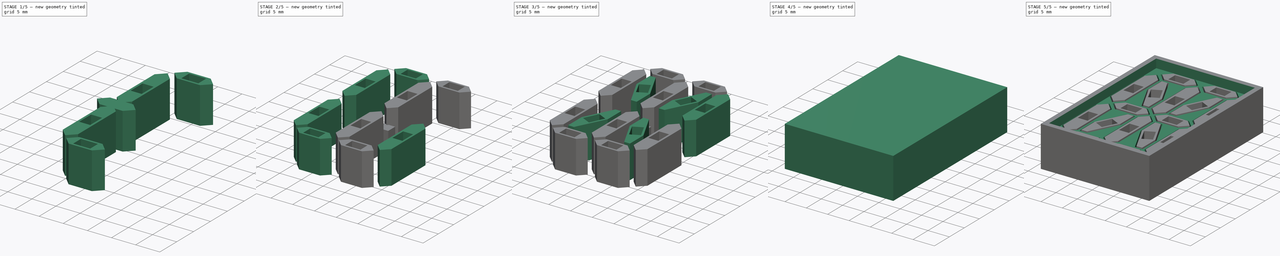
[diagram: build sequence overview — one tinted view per stage of 5, left to right]
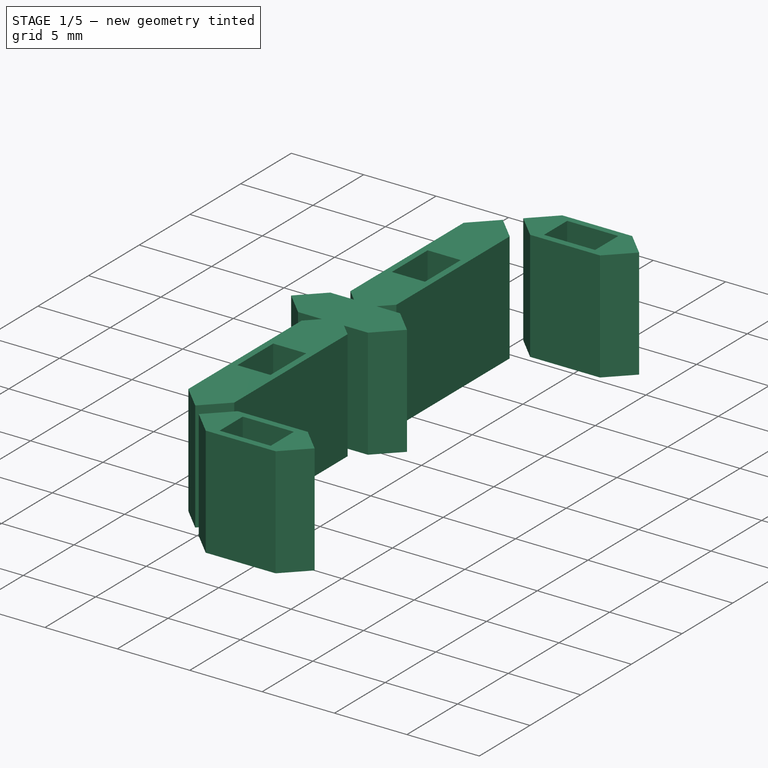
[diagram: stage 1 of 5 — iso view after this stage's code; geometry added in this stage tinted green]
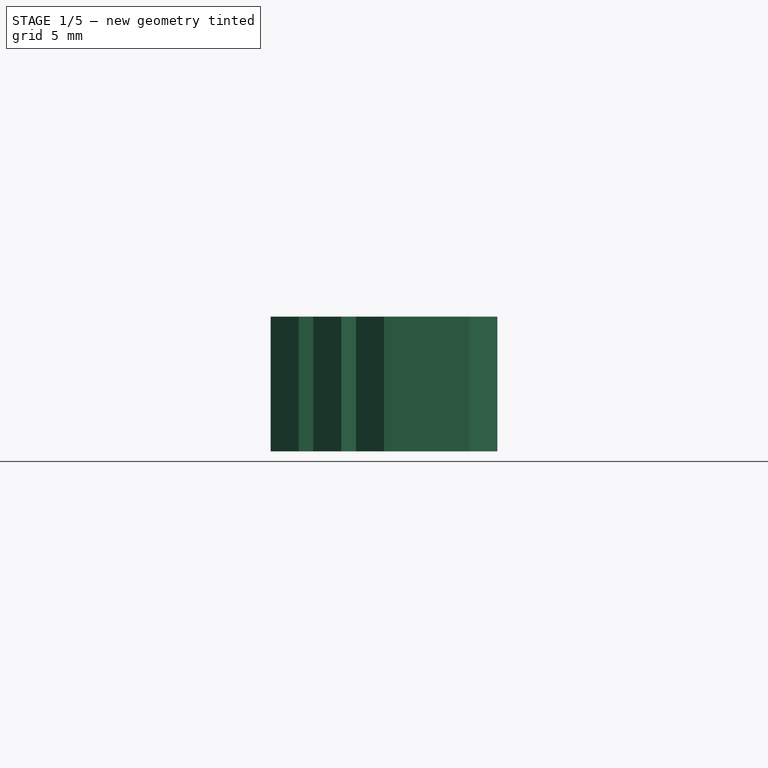
[diagram: stage 1 of 5 — front view after this stage's code; geometry added in this stage tinted green]
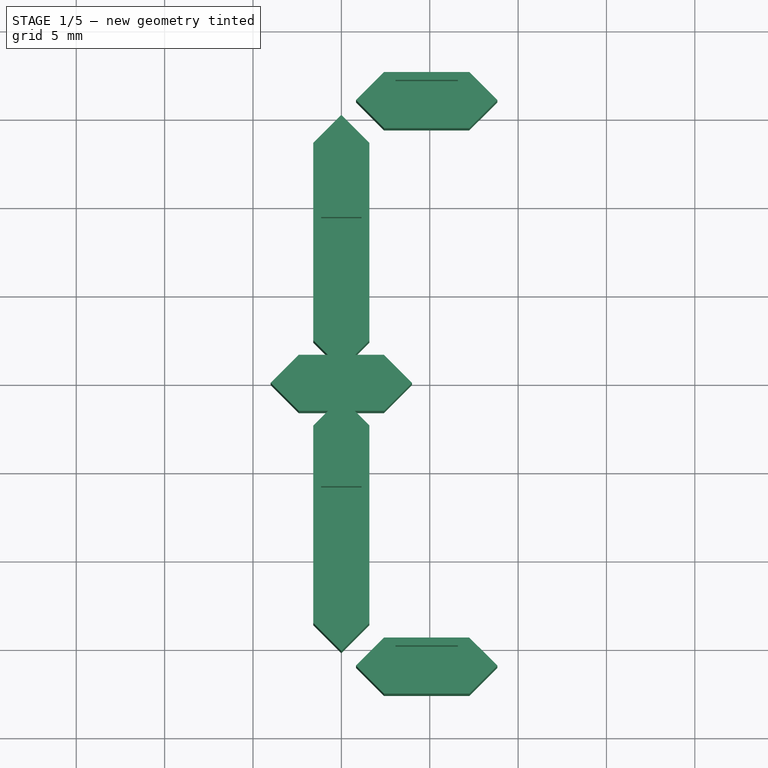
[diagram: stage 1 of 5 — top view after this stage's code; geometry added in this stage tinted green]
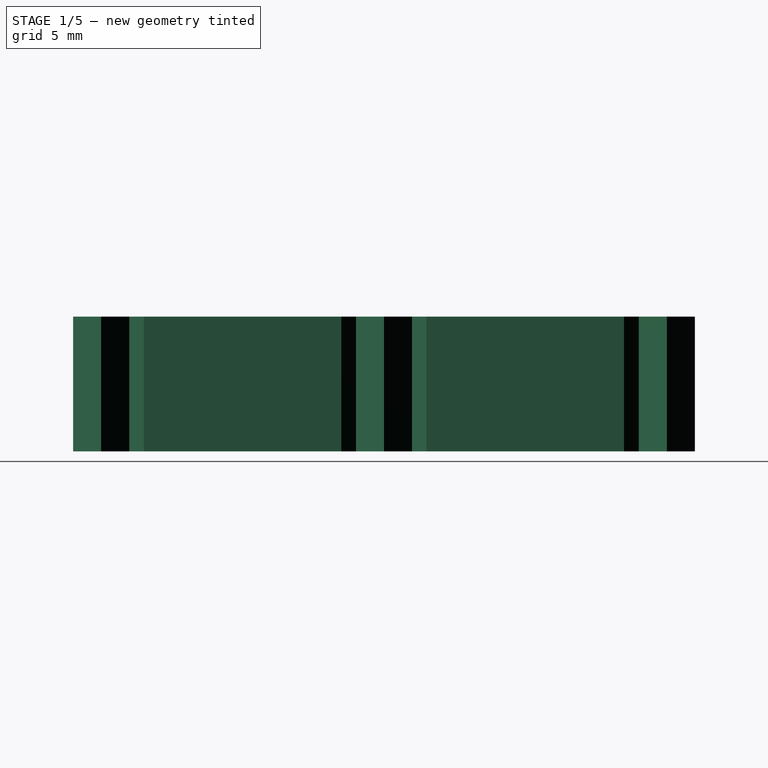
[diagram: stage 1 of 5 — right view after this stage's code; geometry added in this stage tinted green]
FCSTD DOCUMENT  (FreeCAD 0.18.4R)
Label: 16-seg
License: All rights reserved
LicenseURL: http://en.wikipedia.org/wiki/All_rights_reserved
objects: Sketcher::SketchObject×51, PartDesign::Pad×51, PartDesign::Body×51, Part::Cut×18, Part::MultiFuse×2
note: 224 computed .brp shape members not serialized (recipe doc carries the construction recipe); baked Part::Feature solids carry a one-line shape summary decoded from their .brp

FEATURE [PartDesign::Body] Body004
  Group = -> [Sketch004,Pad003]
  Origin = -> Origin004
  Placement = pos=(4.826,0,0) rot=(0,0,1;0rad)
  Tip = -> Pad003
FEATURE [Sketcher::SketchObject] Sketch005
  MapMode = 5
  Support = -> [XY_Plane005]
  sketch-geometry (8):
    g0: LineSegment StartX=0 StartY=0.8128 StartZ=0 EndX=-1.5875 EndY=2.4003 EndZ=0
    g1: LineSegment StartX=-1.5875 StartY=2.4003 StartZ=0 EndX=-1.5875 EndY=13.5763 EndZ=0
    g2: LineSegment StartX=-1.5875 StartY=13.5763 StartZ=0 EndX=0 EndY=15.1638 EndZ=0
    g3: LineSegment StartX=0 StartY=15.1638 StartZ=0 EndX=1.5875 EndY=13.5763 EndZ=0
    g4: LineSegment StartX=1.5875 StartY=13.5763 StartZ=0 EndX=1.5875 EndY=2.4003 EndZ=0
    g5: LineSegment StartX=1.5875 StartY=2.4003 StartZ=0 EndX=0 EndY=0.8128 EndZ=0
    g6: LineSegment [constr] StartX=1.5875 StartY=2.4003 StartZ=0 EndX=-1.5875 EndY=2.4003 EndZ=0
    g7: LineSegment [constr] StartX=1.5875 StartY=13.5763 StartZ=0 EndX=-1.5875 EndY=13.5763 EndZ=0
  constraints (22):
    c: PointOnObject(g0,g-2)
    c: Coincident(g0,g1)
    c: Vertical(g1)
    c: Coincident(g1,g2)
    c: PointOnObject(g2,g-2)
    c: Coincident(g2,g3)
    c: Coincident(g3,g4)
    c: Vertical(g4)
    c: Coincident(g4,g5)
    c: Coincident(g5,g0)
    c: Coincident(g4,g6)
    c: Coincident(g6,g0)
    c: Horizontal(g6)
    c: Coincident(g3,g7)
    c: Coincident(g7,g1)
    c: Angle(g7,g2) = 0.785398
    c: Equal(g2,g3)
    c: DistanceX(g7,g7) = 3.175
    c: Angle(g0,g6) = 0.785398
    c: Equal(g0,g5)
    c: DistanceY(g1,g1) = 11.176
    c: DistanceY(g-1,g0) = 0.8128
FEATURE [PartDesign::Pad] Pad004
  Length = 7.62
  Length2 = 100.076
  Profile = -> Sketch005
  Type = 0
FEATURE [PartDesign::Body] Body005
  Group = -> [Sketch005,Pad004]
  Origin = -> Origin005
  Tip = -> Pad004
FEATURE [Sketcher::SketchObject] Sketch006
  MapMode = 5
  Support = -> [XY_Plane006]
  sketch-geometry (8):
    g0: LineSegment StartX=-2e-16 StartY=0.8255 StartZ=0 EndX=-1.5875 EndY=2.413 EndZ=0
    g1: LineSegment StartX=-1.5875 StartY=2.413 StartZ=0 EndX=-1.5875 EndY=13.589 EndZ=0
    g2: LineSegment StartX=-1.5875 StartY=13.589 StartZ=0 EndX=0 EndY=15.1765 EndZ=0
    g3: LineSegment StartX=0 StartY=15.1765 StartZ=0 EndX=1.5875 EndY=13.589 EndZ=0
    g4: LineSegment StartX=1.5875 StartY=13.589 StartZ=0 EndX=1.5875 EndY=2.413 EndZ=0
    g5: LineSegment StartX=1.5875 StartY=2.413 StartZ=0 EndX=-2e-16 EndY=0.8255 EndZ=0
    g6: LineSegment [constr] StartX=1.5875 StartY=2.413 StartZ=0 EndX=-1.5875 EndY=2.413 EndZ=0
    g7: LineSegment [constr] StartX=1.5875 StartY=13.589 StartZ=0 EndX=-1.5875 EndY=13.589 EndZ=0
  constraints (22):
    c: PointOnObject(g0,g-2)
    c: Coincident(g0,g1)
    c: Vertical(g1)
    c: Coincident(g1,g2)
    c: PointOnObject(g2,g-2)
    c: Coincident(g2,g3)
    c: Coincident(g3,g4)
    c: Vertical(g4)
    c: Coincident(g4,g5)
    c: Coincident(g5,g0)
    c: Coincident(g4,g6)
    c: Coincident(g6,g0)
    c: Horizontal(g6)
    c: Coincident(g3,g7)
    c: Coincident(g7,g1)
    c: Angle(g7,g2) = 0.785398
    c: Equal(g2,g3)
    c: DistanceX(g7,g7) = 3.175
    c: Angle(g0,g6) = 0.785398
    c: Equal(g0,g5)
    c: DistanceY(g1,g1) = 11.176
    c: DistanceY(g-1,g0) = 0.8255
FEATURE [PartDesign::Pad] Pad005
  Length = 7.62
  Length2 = 100.076
  Profile = -> Sketch006
  Type = 0
FEATURE [PartDesign::Body] Body007
  Group = -> [Sketch007,Pad006]
  Origin = -> Origin007
  Placement = pos=(-4.826,16.002,0) rot=(0,0,1;0rad)
  Tip = -> Pad006
FEATURE [Sketcher::SketchObject] Sketch008
  MapMode = 5
  Support = -> [XY_Plane008]
  sketch-geometry (8):
    g0: LineSegment StartX=-4.0005 StartY=0 StartZ=0 EndX=-2.413 EndY=1.5875 EndZ=0
    g1: LineSegment StartX=-2.413 StartY=1.5875 StartZ=0 EndX=2.413 EndY=1.5875 EndZ=0
    g2: LineSegment StartX=2.413 StartY=1.5875 StartZ=0 EndX=4.0005 EndY=0 EndZ=0
    g3: LineSegment StartX=4.0005 StartY=0 StartZ=0 EndX=2.413 EndY=-1.5875 EndZ=0
    g4: LineSegment StartX=2.413 StartY=-1.5875 StartZ=0 EndX=-2.413 EndY=-1.5875 EndZ=0
    g5: LineSegment StartX=-2.413 StartY=-1.5875 StartZ=0 EndX=-4.0005 EndY=0 EndZ=0
    g6: LineSegment [constr] StartX=-2.413 StartY=1.5875 StartZ=0 EndX=-2.413 EndY=-1.5875 EndZ=0
    g7: LineSegment [constr] StartX=2.413 StartY=1.5875 StartZ=0 EndX=2.413 EndY=-1.5875 EndZ=0
  constraints (21):
    c: PointOnObject(g0,g-1)
    c: Coincident(g0,g1)
    c: Coincident(g1,g2)
    c: PointOnObject(g2,g-1)
    c: Coincident(g2,g3)
    c: Coincident(g3,g4)
    c: Horizontal(g4)
    c: Coincident(g4,g5)
    c: Coincident(g5,g0)
    c: Coincident(g0,g6)
    c: Coincident(g6,g4)
    c: Vertical(g6)
    c: Coincident(g1,g7)
    c: Coincident(g7,g3)
    c: Angle(g7,g2) = 0.785398
    c: Equal(g3,g2)
    c: Equal(g0,g5)
    c: Angle(g0,g6) = 0.785398
    c: DistanceY(g6,g6) = 3.175
    c: Symmetric(g1,g0,g-2)
    c: DistanceX(g1,g1) = 4.826
FEATURE [PartDesign::Pad] Pad007
  Length = 7.62
  Length2 = 100.076
  Profile = -> Sketch008
  Type = 0
FEATURE [PartDesign::Body] Body008
  Group = -> [Sketch008,Pad007]
  Origin = -> Origin008
  Placement = pos=(4.826,16.002,0) rot=(0,0,1;0rad)
  Tip = -> Pad007
FEATURE [Sketcher::SketchObject] Sketch009
  MapMode = 5
  Support = -> [XY_Plane009]
  sketch-geometry (8):
    g0: LineSegment StartX=-4.0005 StartY=0 StartZ=0 EndX=-2.413 EndY=1.5875 EndZ=0
    g1: LineSegment StartX=-2.413 StartY=1.5875 StartZ=0 EndX=2.413 EndY=1.5875 EndZ=0
    g2: LineSegment StartX=2.413 StartY=1.5875 StartZ=0 EndX=4.0005 EndY=0 EndZ=0
    g3: LineSegment StartX=4.0005 StartY=0 StartZ=0 EndX=2.413 EndY=-1.5875 EndZ=0
    g4: LineSegment StartX=2.413 StartY=-1.5875 StartZ=0 EndX=-2.413 EndY=-1.5875 EndZ=0
    g5: LineSegment StartX=-2.413 StartY=-1.5875 StartZ=0 EndX=-4.0005 EndY=0 EndZ=0
    g6: LineSegment [constr] StartX=-2.413 StartY=1.5875 StartZ=0 EndX=-2.413 EndY=-1.5875 EndZ=0
    g7: LineSegment [constr] StartX=2.413 StartY=1.5875 StartZ=0 EndX=2.413 EndY=-1.5875 EndZ=0
  constraints (21):
    c: PointOnObject(g0,g-1)
    c: Coincident(g0,g1)
    c: Coincident(g1,g2)
    c: PointOnObject(g2,g-1)
    c: Coincident(g2,g3)
    c: Coincident(g3,g4)
    c: Horizontal(g4)
    c: Coincident(g4,g5)
    c: Coincident(g5,g0)
    c: Coincident(g0,g6)
    c: Coincident(g6,g4)
    c: Vertical(g6)
    c: Coincident(g1,g7)
    c: Coincident(g7,g3)
    c: Angle(g7,g2) = 0.785398
    c: Equal(g3,g2)
    c: Equal(g0,g5)
    c: Angle(g0,g6) = 0.785398
    c: DistanceY(g6,g6) = 3.175
    c: Symmetric(g1,g0,g-2)
    c: DistanceX(g1,g1) = 4.826
FEATURE [PartDesign::Pad] Pad008
  Length = 7.62
  Length2 = 100.076
  Profile = -> Sketch009
  Type = 0
FEATURE [PartDesign::Body] Body009
  Group = -> [Sketch009,Pad008]
  Origin = -> Origin009
  Placement = pos=(-4.826,-16.002,0) rot=(0,0,1;0rad)
  Tip = -> Pad008
FEATURE [Sketcher::SketchObject] Sketch010
  MapMode = 5
  Support = -> [XY_Plane010]
  sketch-geometry (8):
    g0: LineSegment StartX=-4.0005 StartY=2e-16 StartZ=0 EndX=-2.413 EndY=1.5875 EndZ=0
    g1: LineSegment StartX=-2.413 StartY=1.5875 StartZ=0 EndX=2.413 EndY=1.5875 EndZ=0
    g2: LineSegment StartX=2.413 StartY=1.5875 StartZ=0 EndX=4.0005 EndY=0 EndZ=0
    g3: LineSegment StartX=4.0005 StartY=0 StartZ=0 EndX=2.413 EndY=-1.5875 EndZ=0
    g4: LineSegment StartX=2.413 StartY=-1.5875 StartZ=0 EndX=-2.413 EndY=-1.5875 EndZ=0
    g5: LineSegment StartX=-2.413 StartY=-1.5875 StartZ=0 EndX=-4.0005 EndY=2e-16 EndZ=0
    g6: LineSegment [constr] StartX=-2.413 StartY=1.5875 StartZ=0 EndX=-2.413 EndY=-1.5875 EndZ=0
    g7: LineSegment [constr] StartX=2.413 StartY=1.5875 StartZ=0 EndX=2.413 EndY=-1.5875 EndZ=0
  constraints (21):
    c: PointOnObject(g0,g-1)
    c: Coincident(g0,g1)
    c: Coincident(g1,g2)
    c: PointOnObject(g2,g-1)
    c: Coincident(g2,g3)
    c: Coincident(g3,g4)
    c: Horizontal(g4)
    c: Coincident(g4,g5)
    c: Coincident(g5,g0)
    c: Coincident(g0,g6)
    c: Coincident(g6,g4)
    c: Vertical(g6)
    c: Coincident(g1,g7)
    c: Coincident(g7,g3)
    c: Angle(g7,g2) = 0.785398
    c: Equal(g3,g2)
    c: Equal(g0,g5)
    c: Angle(g0,g6) = 0.785398
    c: DistanceY(g6,g6) = 3.175
    c: Symmetric(g1,g0,g-2)
    c: DistanceX(g1,g1) = 4.826
FEATURE [PartDesign::Pad] Pad009
  Length = 7.62
  Length2 = 100.076
  Profile = -> Sketch010
  Type = 0
FEATURE [PartDesign::Body] Body085  label="led012"
  Group = -> [Sketch087,Pad086]
  Origin = -> Origin084
  Placement = pos=(-4.826,16.002,3.5052) rot=(0,0,1;0rad)
  Tip = -> Pad086
FEATURE [Sketcher::SketchObject] Sketch088
  MapMode = 5
  Support = -> [XY_Plane086]
  sketch-geometry (4):
    g0: LineSegment StartX=-1.7653 StartY=1.143 StartZ=0 EndX=1.7653 EndY=1.143 EndZ=0
    g1: LineSegment StartX=1.7653 StartY=1.143 StartZ=0 EndX=1.7653 EndY=-1.143 EndZ=0
    g2: LineSegment StartX=1.7653 StartY=-1.143 StartZ=0 EndX=-1.7653 EndY=-1.143 EndZ=0
    g3: LineSegment StartX=-1.7653 StartY=-1.143 StartZ=0 EndX=-1.7653 EndY=1.143 EndZ=0
  constraints (10):
    c: Coincident(g0,g1)
    c: Coincident(g1,g2)
    c: Coincident(g2,g3)
    c: Coincident(g3,g0)
    c: Horizontal(g2)
    c: Vertical(g3)
    c: Symmetric(g0,g1,g-1)
    c: Symmetric(g0,g0,g-2)
    c: DistanceX(g0,g0) = 3.5306
    c: DistanceY(g3,g3) = 2.286
FEATURE [PartDesign::Pad] Pad087
  Length = 4.1148
  Length2 = 100.076
  Profile = -> Sketch088
  Type = 0
FEATURE [Sketcher::SketchObject] Sketch089
  MapMode = 5
  Support = -> [XY_Plane087]
  sketch-geometry (4):
    g0: LineSegment StartX=-1.7653 StartY=1.143 StartZ=0 EndX=1.7653 EndY=1.143 EndZ=0
    g1: LineSegment StartX=1.7653 StartY=1.143 StartZ=0 EndX=1.7653 EndY=-1.143 EndZ=0
    g2: LineSegment StartX=1.7653 StartY=-1.143 StartZ=0 EndX=-1.7653 EndY=-1.143 EndZ=0
    g3: LineSegment StartX=-1.7653 StartY=-1.143 StartZ=0 EndX=-1.7653 EndY=1.143 EndZ=0
  constraints (10):
    c: Coincident(g0,g1)
    c: Coincident(g1,g2)
    c: Coincident(g2,g3)
    c: Coincident(g3,g0)
    c: Horizontal(g2)
    c: Vertical(g3)
    c: Symmetric(g0,g1,g-1)
    c: Symmetric(g0,g0,g-2)
    c: DistanceX(g0,g0) = 3.5306
    c: DistanceY(g3,g3) = 2.286
FEATURE [PartDesign::Pad] Pad088
  Length = 4.1148
  Length2 = 100.076
  Profile = -> Sketch089
  Type = 0
FEATURE [Sketcher::SketchObject] Sketch090
  MapMode = 5
  Support = -> [XY_Plane088]
  sketch-geometry (4):
    g0: LineSegment StartX=-1.7653 StartY=1.143 StartZ=0 EndX=1.7653 EndY=1.143 EndZ=0
    g1: LineSegment StartX=1.7653 StartY=1.143 StartZ=0 EndX=1.7653 EndY=-1.143 EndZ=0
    g2: LineSegment StartX=1.7653 StartY=-1.143 StartZ=0 EndX=-1.7653 EndY=-1.143 EndZ=0
    g3: LineSegment StartX=-1.7653 StartY=-1.143 StartZ=0 EndX=-1.7653 EndY=1.143 EndZ=0
  constraints (10):
    c: Coincident(g0,g1)
    c: Coincident(g1,g2)
    c: Coincident(g2,g3)
    c: Coincident(g3,g0)
    c: Horizontal(g2)
    c: Vertical(g3)
    c: Symmetric(g0,g1,g-1)
    c: Symmetric(g0,g0,g-2)
    c: DistanceX(g0,g0) = 3.5306
    c: DistanceY(g3,g3) = 2.286
FEATURE [PartDesign::Pad] Pad089
  Length = 4.1148
  Length2 = 100.076
  Profile = -> Sketch090
  Type = 0
FEATURE [PartDesign::Body] Body088  label="led015"
  Group = -> [Sketch090,Pad089]
  Origin = -> Origin087
  Placement = pos=(4.826,16.002,3.5052) rot=(0,0,1;0rad)
  Tip = -> Pad089
FEATURE [Part::Cut] Cut014
  Base = -> Body010
  Tool = -> Body087
FEATURE [Part::Cut] Cut015
  Base = -> Body008
  Tool = -> Body088
FEATURE [Sketcher::SketchObject] Sketch091
  MapMode = 5
  Support = -> [XY_Plane089]
  sketch-geometry (4):
    g0: LineSegment StartX=-1.7653 StartY=1.143 StartZ=0 EndX=1.7653 EndY=1.143 EndZ=0
    g1: LineSegment StartX=1.7653 StartY=1.143 StartZ=0 EndX=1.7653 EndY=-1.143 EndZ=0
    g2: LineSegment StartX=1.7653 StartY=-1.143 StartZ=0 EndX=-1.7653 EndY=-1.143 EndZ=0
    g3: LineSegment StartX=-1.7653 StartY=-1.143 StartZ=0 EndX=-1.7653 EndY=1.143 EndZ=0
  constraints (10):
    c: Coincident(g0,g1)
    c: Coincident(g1,g2)
    c: Coincident(g2,g3)
    c: Coincident(g3,g0)
    c: Horizontal(g2)
    c: Vertical(g3)
    c: Symmetric(g0,g1,g-1)
    c: Symmetric(g0,g0,g-2)
    c: DistanceX(g0,g0) = 3.5306
    c: DistanceY(g3,g3) = 2.286
FEATURE [PartDesign::Pad] Pad090
  Length = 4.1148
  Length2 = 100.076
  Profile = -> Sketch091
  Type = 0
FEATURE [PartDesign::Body] Body089  label="led016"
  Group = -> [Sketch091,Pad090]
  Origin = -> Origin088
  Placement = pos=(0,-7.62,3.5052) rot=(0,0,1;1.5708rad)
  Tip = -> Pad090
FEATURE [Sketcher::SketchObject] Sketch092
  MapMode = 5
  Support = -> [XY_Plane090]
  sketch-geometry (4):
    g0: LineSegment StartX=-1.7653 StartY=1.143 StartZ=0 EndX=1.7653 EndY=1.143 EndZ=0
    g1: LineSegment StartX=1.7653 StartY=1.143 StartZ=0 EndX=1.7653 EndY=-1.143 EndZ=0
    g2: LineSegment StartX=1.7653 StartY=-1.143 StartZ=0 EndX=-1.7653 EndY=-1.143 EndZ=0
    g3: LineSegment StartX=-1.7653 StartY=-1.143 StartZ=0 EndX=-1.7653 EndY=1.143 EndZ=0
  constraints (10):
    c: Coincident(g0,g1)
    c: Coincident(g1,g2)
    c: Coincident(g2,g3)
    c: Coincident(g3,g0)
    c: Horizontal(g2)
    c: Vertical(g3)
    c: Symmetric(g0,g1,g-1)
    c: Symmetric(g0,g0,g-2)
    c: DistanceX(g0,g0) = 3.5306
    c: DistanceY(g3,g3) = 2.286
FEATURE [PartDesign::Pad] Pad091
  Length = 4.1148
  Length2 = 100.076
  Profile = -> Sketch092
  Type = 0
FEATURE [PartDesign::Body] Body090  label="led017"
  Group = -> [Sketch092,Pad091]
  Origin = -> Origin089
  Placement = pos=(0,7.62,3.5052) rot=(0,0,1;1.5708rad)
  Tip = -> Pad091
FEATURE [Part::Cut] Cut016
  Base = -> Body006
  Tool = -> Body089
FEATURE [Part::Cut] Cut017
  Base = -> Body005
  Tool = -> Body090
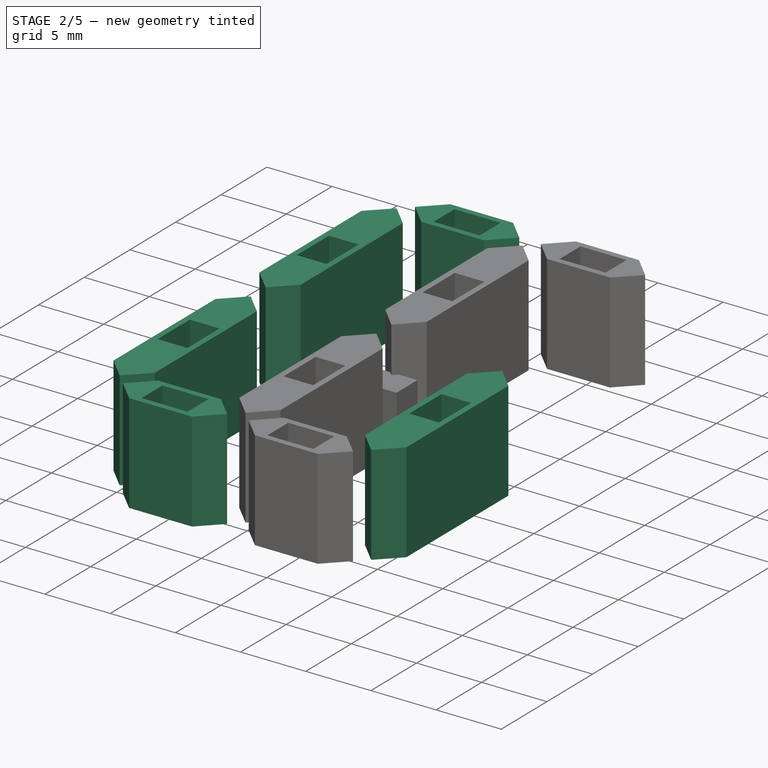
[diagram: stage 2 of 5 — iso view after this stage's code; geometry added in this stage tinted green]
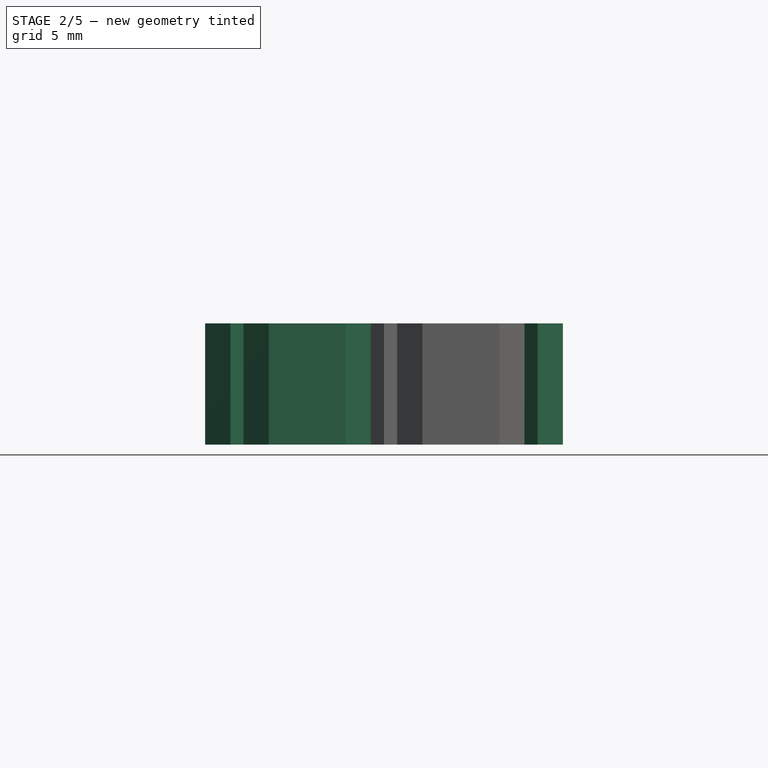
[diagram: stage 2 of 5 — front view after this stage's code; geometry added in this stage tinted green]
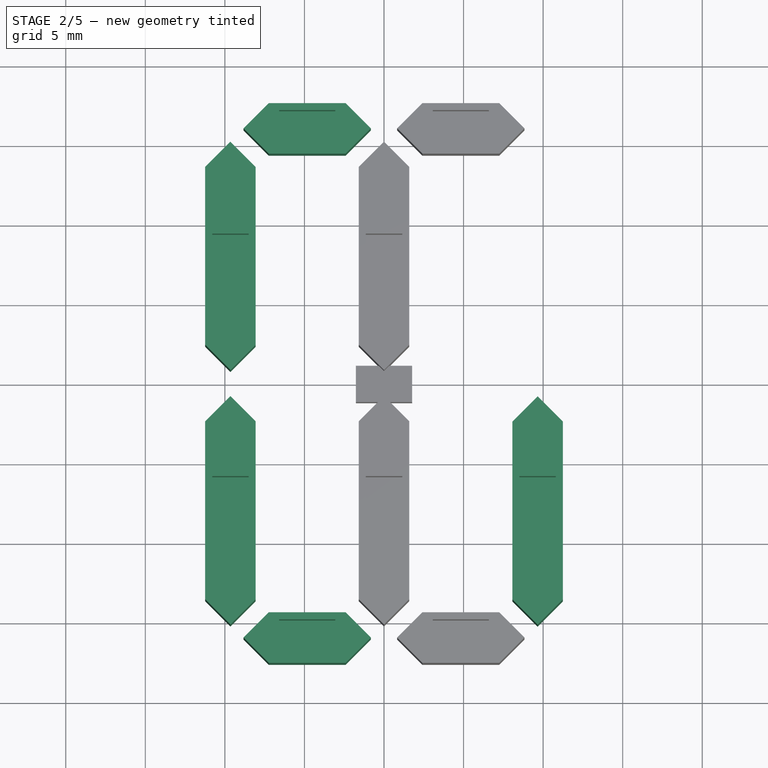
[diagram: stage 2 of 5 — top view after this stage's code; geometry added in this stage tinted green]
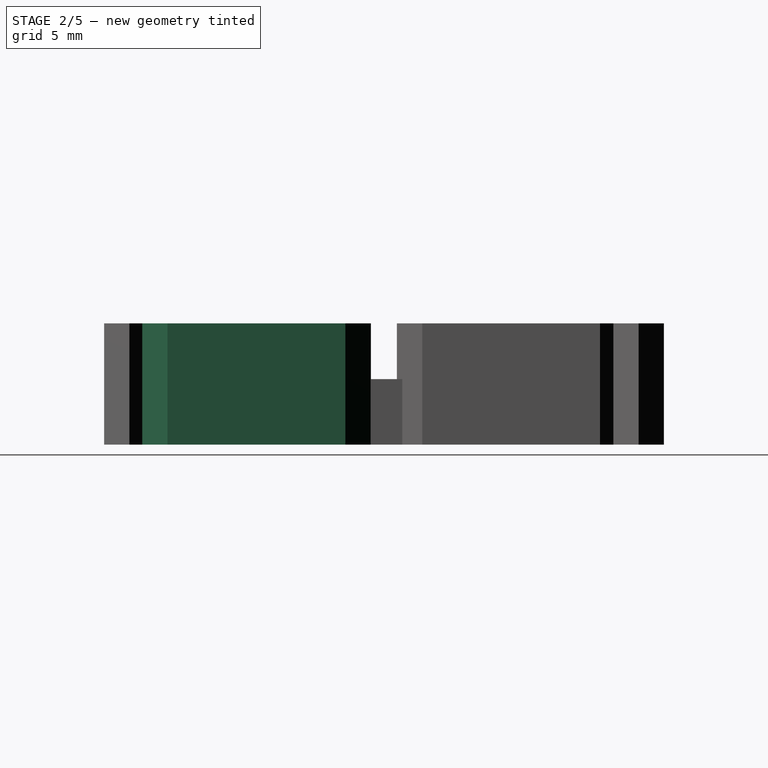
[diagram: stage 2 of 5 — right view after this stage's code; geometry added in this stage tinted green]
FEATURE [PartDesign::Body] Body006
  Group = -> [Sketch006,Pad005]
  Origin = -> Origin006
  Placement = pos=(0,-16.002,0) rot=(0,0,1;0rad)
  Tip = -> Pad005
FEATURE [Sketcher::SketchObject] Sketch007
  MapMode = 5
  Support = -> [XY_Plane007]
  sketch-geometry (8):
    g0: LineSegment StartX=-4.0005 StartY=0 StartZ=0 EndX=-2.413 EndY=1.5875 EndZ=0
    g1: LineSegment StartX=-2.413 StartY=1.5875 StartZ=0 EndX=2.413 EndY=1.5875 EndZ=0
    g2: LineSegment StartX=2.413 StartY=1.5875 StartZ=0 EndX=4.0005 EndY=0 EndZ=0
    g3: LineSegment StartX=4.0005 StartY=0 StartZ=0 EndX=2.413 EndY=-1.5875 EndZ=0
    g4: LineSegment StartX=2.413 StartY=-1.5875 StartZ=0 EndX=-2.413 EndY=-1.5875 EndZ=0
    g5: LineSegment StartX=-2.413 StartY=-1.5875 StartZ=0 EndX=-4.0005 EndY=0 EndZ=0
    g6: LineSegment [constr] StartX=-2.413 StartY=1.5875 StartZ=0 EndX=-2.413 EndY=-1.5875 EndZ=0
    g7: LineSegment [constr] StartX=2.413 StartY=1.5875 StartZ=0 EndX=2.413 EndY=-1.5875 EndZ=0
  constraints (21):
    c: PointOnObject(g0,g-1)
    c: Coincident(g0,g1)
    c: Coincident(g1,g2)
    c: PointOnObject(g2,g-1)
    c: Coincident(g2,g3)
    c: Coincident(g3,g4)
    c: Horizontal(g4)
    c: Coincident(g4,g5)
    c: Coincident(g5,g0)
    c: Coincident(g0,g6)
    c: Coincident(g6,g4)
    c: Vertical(g6)
    c: Coincident(g1,g7)
    c: Coincident(g7,g3)
    c: Angle(g7,g2) = 0.785398
    c: Equal(g3,g2)
    c: Equal(g0,g5)
    c: Angle(g0,g6) = 0.785398
    c: DistanceY(g6,g6) = 3.175
    c: Symmetric(g1,g0,g-2)
    c: DistanceX(g1,g1) = 4.826
FEATURE [PartDesign::Pad] Pad006
  Length = 7.62
  Length2 = 100.076
  Profile = -> Sketch007
  Type = 0
FEATURE [PartDesign::Body] Body010
  Group = -> [Sketch010,Pad009]
  Origin = -> Origin010
  Placement = pos=(4.826,-16.002,0) rot=(0,0,1;0rad)
  Tip = -> Pad009
FEATURE [Sketcher::SketchObject] Sketch011
  MapMode = 5
  Support = -> [XY_Plane011]
  sketch-geometry (8):
    g0: LineSegment StartX=0 StartY=0.8128 StartZ=0 EndX=-1.5875 EndY=2.4003 EndZ=0
    g1: LineSegment StartX=-1.5875 StartY=2.4003 StartZ=0 EndX=-1.5875 EndY=13.5763 EndZ=0
    g2: LineSegment StartX=-1.5875 StartY=13.5763 StartZ=0 EndX=0 EndY=15.1638 EndZ=0
    g3: LineSegment StartX=0 StartY=15.1638 StartZ=0 EndX=1.5875 EndY=13.5763 EndZ=0
    g4: LineSegment StartX=1.5875 StartY=13.5763 StartZ=0 EndX=1.5875 EndY=2.4003 EndZ=0
    g5: LineSegment StartX=1.5875 StartY=2.4003 StartZ=0 EndX=0 EndY=0.8128 EndZ=0
    g6: LineSegment [constr] StartX=1.5875 StartY=2.4003 StartZ=0 EndX=-1.5875 EndY=2.4003 EndZ=0
    g7: LineSegment [constr] StartX=1.5875 StartY=13.5763 StartZ=0 EndX=-1.5875 EndY=13.5763 EndZ=0
  constraints (22):
    c: PointOnObject(g0,g-2)
    c: Coincident(g0,g1)
    c: Vertical(g1)
    c: Coincident(g1,g2)
    c: PointOnObject(g2,g-2)
    c: Coincident(g2,g3)
    c: Coincident(g3,g4)
    c: Vertical(g4)
    c: Coincident(g4,g5)
    c: Coincident(g5,g0)
    c: Coincident(g4,g6)
    c: Coincident(g6,g0)
    c: Horizontal(g6)
    c: Coincident(g3,g7)
    c: Coincident(g7,g1)
    c: Angle(g7,g2) = 0.785398
    c: Equal(g2,g3)
    c: DistanceX(g7,g7) = 3.175
    c: Angle(g0,g6) = 0.785398
    c: Equal(g0,g5)
    c: DistanceY(g1,g1) = 11.176
    c: DistanceY(g-1,g0) = 0.8128
FEATURE [PartDesign::Pad] Pad010
  Length = 7.62
  Length2 = 100.076
  Profile = -> Sketch011
  Type = 0
FEATURE [PartDesign::Body] Body012
  Group = -> [Sketch012,Pad011]
  Origin = -> Origin012
  Placement = pos=(9.652,0,0) rot=(0,0,1;0rad)
  Tip = -> Pad011
FEATURE [Sketcher::SketchObject] Sketch014
  MapMode = 5
  Support = -> [XY_Plane014]
  sketch-geometry (8):
    g0: LineSegment StartX=0 StartY=0.8255 StartZ=0 EndX=-1.5875 EndY=2.413 EndZ=0
    g1: LineSegment StartX=-1.5875 StartY=2.413 StartZ=0 EndX=-1.5875 EndY=13.589 EndZ=0
    g2: LineSegment StartX=-1.5875 StartY=13.589 StartZ=0 EndX=2e-16 EndY=15.1765 EndZ=0
    g3: LineSegment StartX=2e-16 StartY=15.1765 StartZ=0 EndX=1.5875 EndY=13.589 EndZ=0
    g4: LineSegment StartX=1.5875 StartY=13.589 StartZ=0 EndX=1.5875 EndY=2.413 EndZ=0
    g5: LineSegment StartX=1.5875 StartY=2.413 StartZ=0 EndX=0 EndY=0.8255 EndZ=0
    g6: LineSegment [constr] StartX=1.5875 StartY=2.413 StartZ=0 EndX=-1.5875 EndY=2.413 EndZ=0
    g7: LineSegment [constr] StartX=1.5875 StartY=13.589 StartZ=0 EndX=-1.5875 EndY=13.589 EndZ=0
  constraints (22):
    c: PointOnObject(g0,g-2)
    c: Coincident(g0,g1)
    c: Vertical(g1)
    c: Coincident(g1,g2)
    c: PointOnObject(g2,g-2)
    c: Coincident(g2,g3)
    c: Coincident(g3,g4)
    c: Vertical(g4)
    c: Coincident(g4,g5)
    c: Coincident(g5,g0)
    c: Coincident(g4,g6)
    c: Coincident(g6,g0)
    c: Horizontal(g6)
    c: Coincident(g3,g7)
    c: Coincident(g7,g1)
    c: Angle(g7,g2) = 0.785398
    c: Equal(g2,g3)
    c: DistanceX(g7,g7) = 3.175
    c: Angle(g0,g6) = 0.785398
    c: Equal(g0,g5)
    c: DistanceY(g1,g1) = 11.176
    c: DistanceY(g-1,g0) = 0.8255
FEATURE [PartDesign::Pad] Pad013
  Length = 7.62
  Length2 = 100.076
  Profile = -> Sketch014
  Type = 0
FEATURE [PartDesign::Body] Body014
  Group = -> [Sketch014,Pad013]
  Origin = -> Origin014
  Placement = pos=(-9.652,-16.002,0) rot=(0,0,1;0rad)
  Tip = -> Pad013
FEATURE [Sketcher::SketchObject] Sketch015
  MapMode = 5
  Support = -> [XY_Plane015]
  sketch-geometry (8):
    g0: LineSegment StartX=0 StartY=0.8128 StartZ=0 EndX=-1.5875 EndY=2.4003 EndZ=0
    g1: LineSegment StartX=-1.5875 StartY=2.4003 StartZ=0 EndX=-1.5875 EndY=13.5763 EndZ=0
    g2: LineSegment StartX=-1.5875 StartY=13.5763 StartZ=0 EndX=2e-16 EndY=15.1638 EndZ=0
    g3: LineSegment StartX=0 StartY=15.1638 StartZ=0 EndX=1.5875 EndY=13.5763 EndZ=0
    g4: LineSegment StartX=1.5875 StartY=13.5763 StartZ=0 EndX=1.5875 EndY=2.4003 EndZ=0
    g5: LineSegment StartX=1.5875 StartY=2.4003 StartZ=0 EndX=0 EndY=0.8128 EndZ=0
    g6: LineSegment [constr] StartX=1.5875 StartY=2.4003 StartZ=0 EndX=-1.5875 EndY=2.4003 EndZ=0
    g7: LineSegment [constr] StartX=1.5875 StartY=13.5763 StartZ=0 EndX=-1.5875 EndY=13.5763 EndZ=0
  constraints (22):
    c: PointOnObject(g0,g-2)
    c: Coincident(g0,g1)
    c: Vertical(g1)
    c: Coincident(g1,g2)
    c: PointOnObject(g2,g-2)
    c: Coincident(g2,g3)
    c: Coincident(g3,g4)
    c: Vertical(g4)
    c: Coincident(g4,g5)
    c: Coincident(g5,g0)
    c: Coincident(g4,g6)
    c: Coincident(g6,g0)
    c: Horizontal(g6)
    c: Coincident(g3,g7)
    c: Coincident(g7,g1)
    c: Angle(g7,g2) = 0.785398
    c: Equal(g2,g3)
    c: DistanceX(g7,g7) = 3.175
    c: Angle(g0,g6) = 0.785398
    c: Equal(g0,g5)
    c: DistanceY(g1,g1) = 11.176
    c: DistanceY(g-1,g0) = 0.8128
FEATURE [PartDesign::Pad] Pad014
  Length = 7.62
  Length2 = 100.076
  Profile = -> Sketch015
  Type = 0
FEATURE [Sketcher::SketchObject] Sketch083
  MapMode = 5
  Support = -> [XY_Plane081]
  sketch-geometry (4):
    g0: LineSegment StartX=-1.7653 StartY=1.143 StartZ=0 EndX=1.7653 EndY=1.143 EndZ=0
    g1: LineSegment StartX=1.7653 StartY=1.143 StartZ=0 EndX=1.7653 EndY=-1.143 EndZ=0
    g2: LineSegment StartX=1.7653 StartY=-1.143 StartZ=0 EndX=-1.7653 EndY=-1.143 EndZ=0
    g3: LineSegment StartX=-1.7653 StartY=-1.143 StartZ=0 EndX=-1.7653 EndY=1.143 EndZ=0
  constraints (10):
    c: Coincident(g0,g1)
    c: Coincident(g1,g2)
    c: Coincident(g2,g3)
    c: Coincident(g3,g0)
    c: Horizontal(g2)
    c: Vertical(g3)
    c: Symmetric(g0,g1,g-1)
    c: Symmetric(g0,g0,g-2)
    c: DistanceX(g0,g0) = 3.5306
    c: DistanceY(g3,g3) = 2.286
FEATURE [PartDesign::Pad] Pad082
  Length = 4.1148
  Length2 = 100.076
  Profile = -> Sketch083
  Type = 0
FEATURE [Sketcher::SketchObject] Sketch084
  MapMode = 5
  Support = -> [XY_Plane082]
  sketch-geometry (4):
    g0: LineSegment StartX=-1.7653 StartY=1.143 StartZ=0 EndX=1.7653 EndY=1.143 EndZ=0
    g1: LineSegment StartX=1.7653 StartY=1.143 StartZ=0 EndX=1.7653 EndY=-1.143 EndZ=0
    g2: LineSegment StartX=1.7653 StartY=-1.143 StartZ=0 EndX=-1.7653 EndY=-1.143 EndZ=0
    g3: LineSegment StartX=-1.7653 StartY=-1.143 StartZ=0 EndX=-1.7653 EndY=1.143 EndZ=0
  constraints (10):
    c: Coincident(g0,g1)
    c: Coincident(g1,g2)
    c: Coincident(g2,g3)
    c: Coincident(g3,g0)
    c: Horizontal(g2)
    c: Vertical(g3)
    c: Symmetric(g0,g1,g-1)
    c: Symmetric(g0,g0,g-2)
    c: DistanceX(g0,g0) = 3.5306
    c: DistanceY(g3,g3) = 2.286
FEATURE [PartDesign::Pad] Pad083
  Length = 4.1148
  Length2 = 100.076
  Profile = -> Sketch084
  Type = 0
FEATURE [PartDesign::Body] Body082  label="led009"
  Group = -> [Sketch084,Pad083]
  Origin = -> Origin081
  Placement = pos=(-9.652,-7.62,3.5052) rot=(0,0,1;1.5708rad)
  Tip = -> Pad083
FEATURE [Sketcher::SketchObject] Sketch085
  MapMode = 5
  Support = -> [XY_Plane083]
  sketch-geometry (4):
    g0: LineSegment StartX=-1.7653 StartY=1.143 StartZ=0 EndX=1.7653 EndY=1.143 EndZ=0
    g1: LineSegment StartX=1.7653 StartY=1.143 StartZ=0 EndX=1.7653 EndY=-1.143 EndZ=0
    g2: LineSegment StartX=1.7653 StartY=-1.143 StartZ=0 EndX=-1.7653 EndY=-1.143 EndZ=0
    g3: LineSegment StartX=-1.7653 StartY=-1.143 StartZ=0 EndX=-1.7653 EndY=1.143 EndZ=0
  constraints (10):
    c: Coincident(g0,g1)
    c: Coincident(g1,g2)
    c: Coincident(g2,g3)
    c: Coincident(g3,g0)
    c: Horizontal(g2)
    c: Vertical(g3)
    c: Symmetric(g0,g1,g-1)
    c: Symmetric(g0,g0,g-2)
    c: DistanceX(g0,g0) = 3.5306
    c: DistanceY(g3,g3) = 2.286
FEATURE [PartDesign::Pad] Pad084
  Length = 4.1148
  Length2 = 100.076
  Profile = -> Sketch085
  Type = 0
FEATURE [PartDesign::Body] Body083  label="led010"
  Group = -> [Sketch085,Pad084]
  Origin = -> Origin082
  Placement = pos=(-9.652,7.62,3.5052) rot=(0,0,1;1.5708rad)
  Tip = -> Pad084
FEATURE [Part::Cut] Cut009
  Base = -> Body014
  Tool = -> Body082
FEATURE [Part::Cut] Cut010
  Base = -> Body011
  Tool = -> Body083
FEATURE [Sketcher::SketchObject] Sketch086
  MapMode = 5
  Support = -> [XY_Plane084]
  sketch-geometry (4):
    g0: LineSegment StartX=-1.7653 StartY=1.143 StartZ=0 EndX=1.7653 EndY=1.143 EndZ=0
    g1: LineSegment StartX=1.7653 StartY=1.143 StartZ=0 EndX=1.7653 EndY=-1.143 EndZ=0
    g2: LineSegment StartX=1.7653 StartY=-1.143 StartZ=0 EndX=-1.7653 EndY=-1.143 EndZ=0
    g3: LineSegment StartX=-1.7653 StartY=-1.143 StartZ=0 EndX=-1.7653 EndY=1.143 EndZ=0
  constraints (10):
    c: Coincident(g0,g1)
    c: Coincident(g1,g2)
    c: Coincident(g2,g3)
    c: Coincident(g3,g0)
    c: Horizontal(g2)
    c: Vertical(g3)
    c: Symmetric(g0,g1,g-1)
    c: Symmetric(g0,g0,g-2)
    c: DistanceX(g0,g0) = 3.5306
    c: DistanceY(g3,g3) = 2.286
FEATURE [PartDesign::Pad] Pad085
  Length = 4.1148
  Length2 = 100.076
  Profile = -> Sketch086
  Type = 0
FEATURE [PartDesign::Body] Body084  label="led011"
  Group = -> [Sketch086,Pad085]
  Origin = -> Origin083
  Placement = pos=(9.652,-7.62,3.5052) rot=(0,0,1;1.5708rad)
  Tip = -> Pad085
FEATURE [Part::Cut] Cut011
  Base = -> Body015
  Tool = -> Body084
FEATURE [Sketcher::SketchObject] Sketch087
  MapMode = 5
  Support = -> [XY_Plane085]
  sketch-geometry (4):
    g0: LineSegment StartX=-1.7653 StartY=1.143 StartZ=0 EndX=1.7653 EndY=1.143 EndZ=0
    g1: LineSegment StartX=1.7653 StartY=1.143 StartZ=0 EndX=1.7653 EndY=-1.143 EndZ=0
    g2: LineSegment StartX=1.7653 StartY=-1.143 StartZ=0 EndX=-1.7653 EndY=-1.143 EndZ=0
    g3: LineSegment StartX=-1.7653 StartY=-1.143 StartZ=0 EndX=-1.7653 EndY=1.143 EndZ=0
  constraints (10):
    c: Coincident(g0,g1)
    c: Coincident(g1,g2)
    c: Coincident(g2,g3)
    c: Coincident(g3,g0)
    c: Horizontal(g2)
    c: Vertical(g3)
    c: Symmetric(g0,g1,g-1)
    c: Symmetric(g0,g0,g-2)
    c: DistanceX(g0,g0) = 3.5306
    c: DistanceY(g3,g3) = 2.286
FEATURE [PartDesign::Pad] Pad086
  Length = 4.1148
  Length2 = 100.076
  Profile = -> Sketch087
  Type = 0
FEATURE [PartDesign::Body] Body086  label="led013"
  Group = -> [Sketch088,Pad087]
  Origin = -> Origin085
  Placement = pos=(-4.826,-16.002,3.5052) rot=(0,0,1;0rad)
  Tip = -> Pad087
FEATURE [Part::Cut] Cut012
  Base = -> Body007
  Tool = -> Body085
FEATURE [PartDesign::Body] Body087  label="led014"
  Group = -> [Sketch089,Pad088]
  Origin = -> Origin086
  Placement = pos=(4.826,-16.002,3.5052) rot=(0,0,1;0rad)
  Tip = -> Pad088
FEATURE [Part::Cut] Cut013
  Base = -> Body009
  Tool = -> Body086
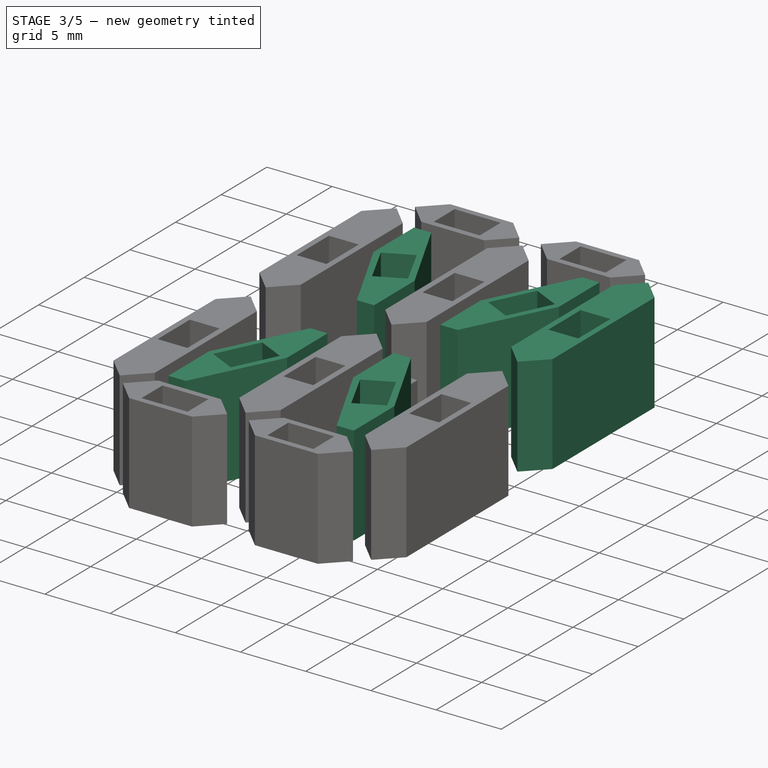
[diagram: stage 3 of 5 — iso view after this stage's code; geometry added in this stage tinted green]
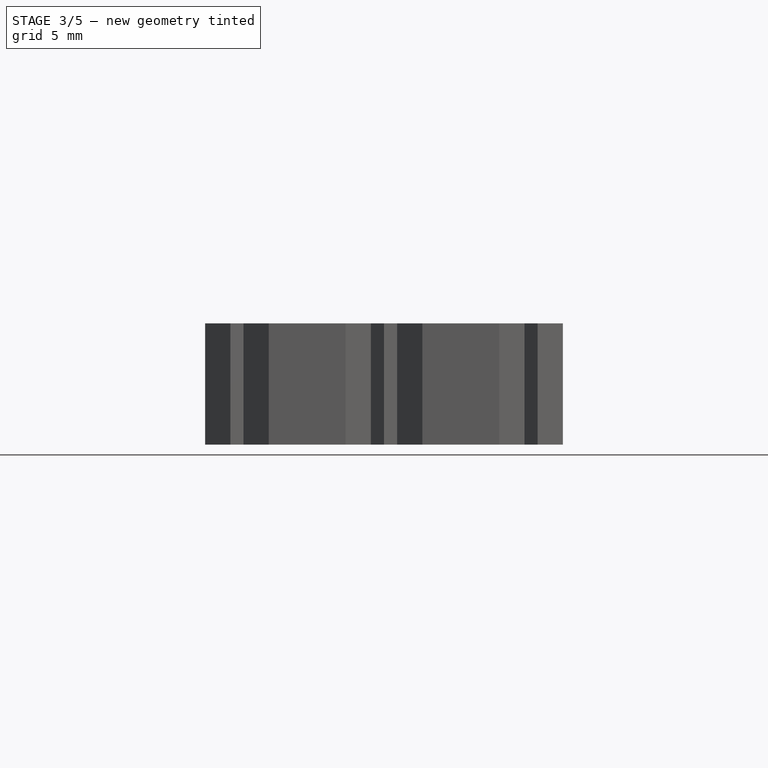
[diagram: stage 3 of 5 — front view after this stage's code; geometry added in this stage tinted green]
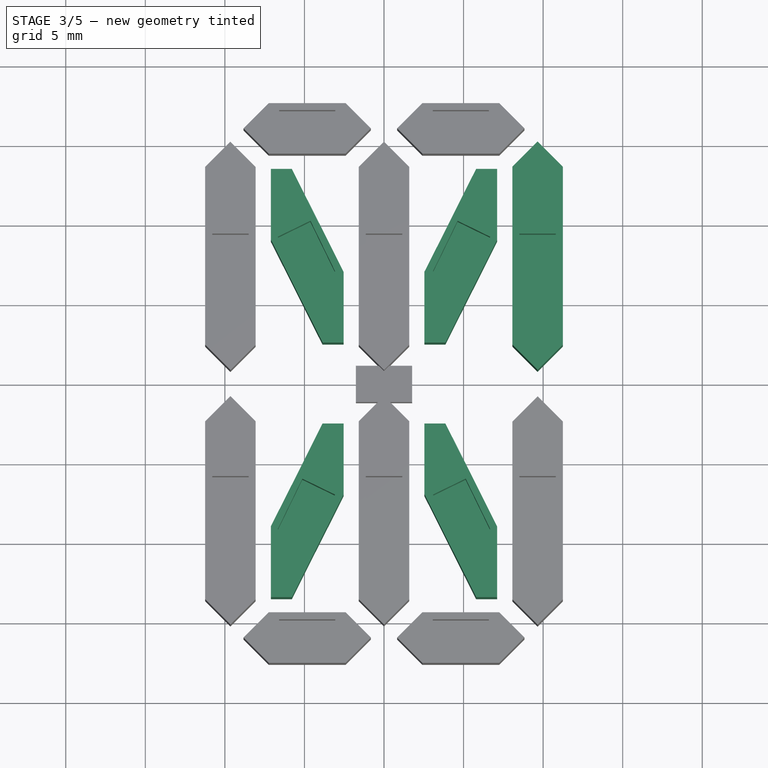
[diagram: stage 3 of 5 — top view after this stage's code; geometry added in this stage tinted green]
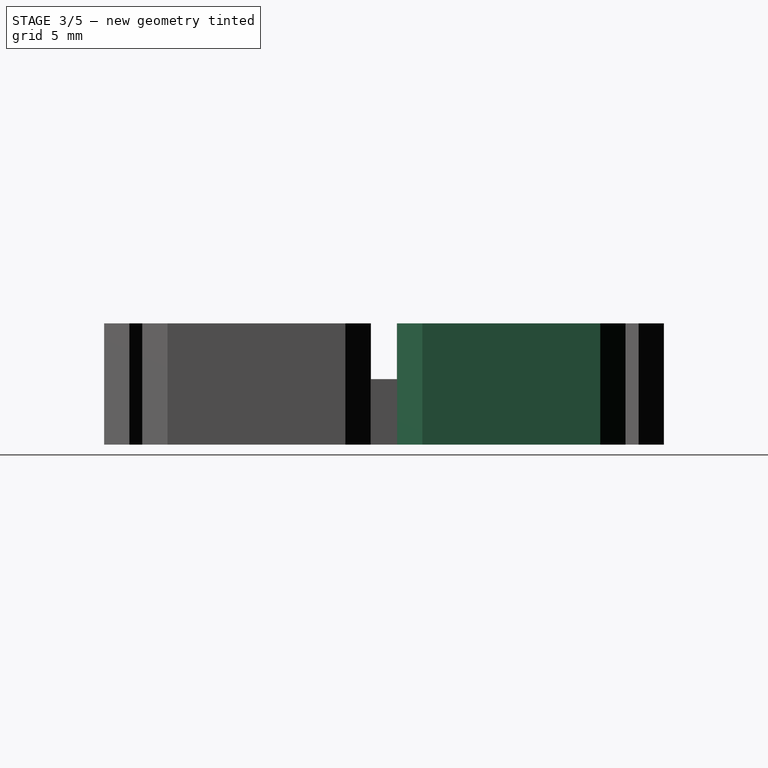
[diagram: stage 3 of 5 — right view after this stage's code; geometry added in this stage tinted green]
FEATURE [PartDesign::Body] Body011
  Group = -> [Sketch011,Pad010]
  Origin = -> Origin011
  Placement = pos=(-9.652,0,0) rot=(0,0,1;0rad)
  Tip = -> Pad010
FEATURE [Sketcher::SketchObject] Sketch012
  MapMode = 5
  Support = -> [XY_Plane012]
  sketch-geometry (8):
    g0: LineSegment StartX=0 StartY=0.8255 StartZ=0 EndX=-1.5875 EndY=2.413 EndZ=0
    g1: LineSegment StartX=-1.5875 StartY=2.413 StartZ=0 EndX=-1.5875 EndY=13.589 EndZ=0
    g2: LineSegment StartX=-1.5875 StartY=13.589 StartZ=0 EndX=2e-16 EndY=15.1765 EndZ=0
    g3: LineSegment StartX=2e-16 StartY=15.1765 StartZ=0 EndX=1.5875 EndY=13.589 EndZ=0
    g4: LineSegment StartX=1.5875 StartY=13.589 StartZ=0 EndX=1.5875 EndY=2.413 EndZ=0
    g5: LineSegment StartX=1.5875 StartY=2.413 StartZ=0 EndX=0 EndY=0.8255 EndZ=0
    g6: LineSegment [constr] StartX=1.5875 StartY=2.413 StartZ=0 EndX=-1.5875 EndY=2.413 EndZ=0
    g7: LineSegment [constr] StartX=1.5875 StartY=13.589 StartZ=0 EndX=-1.5875 EndY=13.589 EndZ=0
  constraints (22):
    c: PointOnObject(g0,g-2)
    c: Coincident(g0,g1)
    c: Vertical(g1)
    c: Coincident(g1,g2)
    c: PointOnObject(g2,g-2)
    c: Coincident(g2,g3)
    c: Coincident(g3,g4)
    c: Vertical(g4)
    c: Coincident(g4,g5)
    c: Coincident(g5,g0)
    c: Coincident(g4,g6)
    c: Coincident(g6,g0)
    c: Horizontal(g6)
    c: Coincident(g3,g7)
    c: Coincident(g7,g1)
    c: Angle(g7,g2) = 0.785398
    c: Equal(g2,g3)
    c: DistanceX(g7,g7) = 3.175
    c: Angle(g0,g6) = 0.785398
    c: Equal(g0,g5)
    c: DistanceY(g1,g1) = 11.176
    c: DistanceY(g-1,g0) = 0.8255
FEATURE [PartDesign::Pad] Pad011
  Length = 7.62
  Length2 = 100.076
  Profile = -> Sketch012
  Type = 0
FEATURE [PartDesign::Body] Body015
  Group = -> [Sketch015,Pad014]
  Origin = -> Origin015
  Placement = pos=(9.652,-16.002,0) rot=(0,0,1;0rad)
  Tip = -> Pad014
FEATURE [Sketcher::SketchObject] Sketch016
  MapMode = 5
  Support = -> [XY_Plane016]
  sketch-geometry (9):
    g0: LineSegment StartX=-7.112 StartY=13.4518 StartZ=0 EndX=-7.112 EndY=9.00935 EndZ=0
    g1: LineSegment StartX=-7.112 StartY=9.00935 StartZ=0 EndX=-3.8608 EndY=2.54 EndZ=0
    g2: LineSegment StartX=-3.8608 StartY=2.54 StartZ=0 EndX=-2.54 EndY=2.54 EndZ=0
    g3: LineSegment StartX=-2.54 StartY=2.54 StartZ=0 EndX=-2.54 EndY=6.98249 EndZ=0
    g4: LineSegment StartX=-2.54 StartY=6.98249 StartZ=0 EndX=-5.7912 EndY=13.4518 EndZ=0
    g5: LineSegment StartX=-5.7912 StartY=13.4518 StartZ=0 EndX=-7.112 EndY=13.4518 EndZ=0
    g6: LineSegment [constr] StartX=-5.7912 StartY=13.4518 StartZ=0 EndX=-7.112 EndY=9.00935 EndZ=0
    g7: LineSegment [constr] StartX=-2.54 StartY=6.98249 StartZ=0 EndX=-3.8608 EndY=2.54 EndZ=0
    g8: LineSegment [constr] StartX=-6.51746 StartY=7.82631 StartZ=0 EndX=-3.68056 EndY=9.25201 EndZ=0
  constraints (26):
    c: Vertical(g0)
    c: Coincident(g0,g1)
    c: Coincident(g1,g2)
    c: Coincident(g2,g3)
    c: Vertical(g3)
    c: Coincident(g3,g4)
    c: Coincident(g4,g5)
    c: Coincident(g0,g5)
    c: Coincident(g6,g4)
    c: Coincident(g6,g0)
    c: Coincident(g7,g3)
    c: Coincident(g7,g1)
    c: Angle(g0,g5) = 1.5708
    c: Angle(g3,g2) = 1.5708
    c: PointOnObject(g8,g1)
    c: PointOnObject(g8,g4)
    c: Angle(g8,g4) = 1.5708
    c: Distance(g8) = 3.175
    c: Angle(g1,g8) = 1.5708
    c: DistanceX(g2,g-1) = 2.54
    c: DistanceY(g-1,g2) = 2.54
    c: DistanceX(g5,g5) = 1.3208
    c: Equal(g2,g5)
    c: Distance(g8,g3) = 2.54
    c: DistanceX(g0,g-1) = 7.112
    c: DistanceY(g-1,g0) = 13.4518
FEATURE [PartDesign::Pad] Pad015
  Length = 7.62
  Length2 = 99.9998
  Profile = -> Sketch016
  Type = 0
FEATURE [PartDesign::Body] Body016
  Group = -> [Sketch016,Pad015]
  Origin = -> Origin016
  Tip = -> Pad015
FEATURE [Sketcher::SketchObject] Sketch017
  MapMode = 5
  Support = -> [XY_Plane017]
  sketch-geometry (9):
    g0: LineSegment StartX=-7.112 StartY=13.4518 StartZ=0 EndX=-7.112 EndY=9.00935 EndZ=0
    g1: LineSegment StartX=-7.112 StartY=9.00935 StartZ=0 EndX=-3.8608 EndY=2.54 EndZ=0
    g2: LineSegment StartX=-3.8608 StartY=2.54 StartZ=0 EndX=-2.54 EndY=2.54 EndZ=0
    g3: LineSegment StartX=-2.54 StartY=2.54 StartZ=0 EndX=-2.54 EndY=6.98249 EndZ=0
    g4: LineSegment StartX=-2.54 StartY=6.98249 StartZ=0 EndX=-5.7912 EndY=13.4518 EndZ=0
    g5: LineSegment StartX=-5.7912 StartY=13.4518 StartZ=0 EndX=-7.112 EndY=13.4518 EndZ=0
    g6: LineSegment [constr] StartX=-5.7912 StartY=13.4518 StartZ=0 EndX=-7.112 EndY=9.00935 EndZ=0
    g7: LineSegment [constr] StartX=-2.54 StartY=6.98249 StartZ=0 EndX=-3.8608 EndY=2.54 EndZ=0
    g8: LineSegment [constr] StartX=-6.51746 StartY=7.82631 StartZ=0 EndX=-3.68056 EndY=9.25201 EndZ=0
  constraints (26):
    c: Vertical(g0)
    c: Coincident(g0,g1)
    c: Coincident(g1,g2)
    c: Coincident(g2,g3)
    c: Vertical(g3)
    c: Coincident(g3,g4)
    c: Coincident(g4,g5)
    c: Coincident(g0,g5)
    c: Coincident(g6,g4)
    c: Coincident(g6,g0)
    c: Coincident(g7,g3)
    c: Coincident(g7,g1)
    c: Angle(g0,g5) = 1.5708
    c: Angle(g3,g2) = 1.5708
    c: PointOnObject(g8,g1)
    c: PointOnObject(g8,g4)
    c: Angle(g8,g4) = 1.5708
    c: Distance(g8) = 3.175
    c: Angle(g1,g8) = 1.5708
    c: DistanceX(g2,g-1) = 2.54
    c: DistanceY(g-1,g2) = 2.54
    c: DistanceX(g5,g5) = 1.3208
    c: Equal(g2,g5)
    c: Distance(g8,g3) = 2.54
    c: DistanceX(g0,g-1) = 7.112
    c: DistanceY(g-1,g0) = 13.4518
FEATURE [PartDesign::Pad] Pad016
  Length = 7.62
  Length2 = 99.9998
  Profile = -> Sketch017
  Type = 0
FEATURE [PartDesign::Body] Body017
  Group = -> [Sketch017,Pad016]
  Origin = -> Origin017
  Placement = pos=(9.652,-16.002,0) rot=(0,0,1;0rad)
  Tip = -> Pad016
FEATURE [Sketcher::SketchObject] Sketch018
  AttachmentOffset = pos=(0,0,0) rot=(0,1,0;3.14159rad)
  MapMode = 5
  Placement = pos=(0,0,0) rot=(0,1,0;3.14159rad)
  Support = -> [XY_Plane018]
  sketch-geometry (9):
    g0: LineSegment StartX=-7.112 StartY=13.4518 StartZ=0 EndX=-7.112 EndY=9.00935 EndZ=0
    g1: LineSegment StartX=-7.112 StartY=9.00935 StartZ=0 EndX=-3.8608 EndY=2.54 EndZ=0
    g2: LineSegment StartX=-3.8608 StartY=2.54 StartZ=0 EndX=-2.54 EndY=2.54 EndZ=0
    g3: LineSegment StartX=-2.54 StartY=2.54 StartZ=0 EndX=-2.54 EndY=6.98249 EndZ=0
    g4: LineSegment StartX=-2.54 StartY=6.98249 StartZ=0 EndX=-5.7912 EndY=13.4518 EndZ=0
    g5: LineSegment StartX=-5.7912 StartY=13.4518 StartZ=0 EndX=-7.112 EndY=13.4518 EndZ=0
    g6: LineSegment [constr] StartX=-5.7912 StartY=13.4518 StartZ=0 EndX=-7.112 EndY=9.00935 EndZ=0
    g7: LineSegment [constr] StartX=-2.54 StartY=6.98249 StartZ=0 EndX=-3.8608 EndY=2.54 EndZ=0
    g8: LineSegment [constr] StartX=-6.51746 StartY=7.82631 StartZ=0 EndX=-3.68056 EndY=9.25201 EndZ=0
  constraints (26):
    c: Vertical(g0)
    c: Coincident(g0,g1)
    c: Coincident(g1,g2)
    c: Coincident(g2,g3)
    c: Vertical(g3)
    c: Coincident(g3,g4)
    c: Coincident(g4,g5)
    c: Coincident(g0,g5)
    c: Coincident(g6,g4)
    c: Coincident(g6,g0)
    c: Coincident(g7,g3)
    c: Coincident(g7,g1)
    c: Angle(g0,g5) = 1.5708
    c: Angle(g3,g2) = 1.5708
    c: PointOnObject(g8,g1)
    c: PointOnObject(g8,g4)
    c: Angle(g8,g4) = 1.5708
    c: Distance(g8) = 3.175
    c: Angle(g1,g8) = 1.5708
    c: DistanceX(g2,g-1) = 2.54
    c: DistanceY(g-1,g2) = 2.54
    c: DistanceX(g5,g5) = 1.3208
    c: Equal(g2,g5)
    c: Distance(g8,g3) = 2.54
    c: DistanceX(g0,g-1) = 7.112
    c: DistanceY(g-1,g0) = 13.4518
FEATURE [PartDesign::Pad] Pad017
  Length = 7.62
  Length2 = 99.9998
  Profile = -> Sketch018
  Reversed = true
  Type = 0
FEATURE [PartDesign::Body] Body018
  Group = -> [Sketch018,Pad017]
  Origin = -> Origin018
  Tip = -> Pad017
FEATURE [Sketcher::SketchObject] Sketch019
  AttachmentOffset = pos=(0,0,0) rot=(0,1,0;3.14159rad)
  MapMode = 5
  Placement = pos=(0,0,0) rot=(0,1,0;3.14159rad)
  Support = -> [XY_Plane019]
  sketch-geometry (9):
    g0: LineSegment StartX=-7.112 StartY=13.4518 StartZ=0 EndX=-7.112 EndY=9.00935 EndZ=0
    g1: LineSegment StartX=-7.112 StartY=9.00935 StartZ=0 EndX=-3.8608 EndY=2.54 EndZ=0
    g2: LineSegment StartX=-3.8608 StartY=2.54 StartZ=0 EndX=-2.54 EndY=2.54 EndZ=0
    g3: LineSegment StartX=-2.54 StartY=2.54 StartZ=0 EndX=-2.54 EndY=6.98249 EndZ=0
    g4: LineSegment StartX=-2.54 StartY=6.98249 StartZ=0 EndX=-5.7912 EndY=13.4518 EndZ=0
    g5: LineSegment StartX=-5.7912 StartY=13.4518 StartZ=0 EndX=-7.112 EndY=13.4518 EndZ=0
    g6: LineSegment [constr] StartX=-5.7912 StartY=13.4518 StartZ=0 EndX=-7.112 EndY=9.00935 EndZ=0
    g7: LineSegment [constr] StartX=-2.54 StartY=6.98249 StartZ=0 EndX=-3.8608 EndY=2.54 EndZ=0
    g8: LineSegment [constr] StartX=-6.51746 StartY=7.82631 StartZ=0 EndX=-3.68056 EndY=9.25201 EndZ=0
  constraints (26):
    c: Vertical(g0)
    c: Coincident(g0,g1)
    c: Coincident(g1,g2)
    c: Coincident(g2,g3)
    c: Vertical(g3)
    c: Coincident(g3,g4)
    c: Coincident(g4,g5)
    c: Coincident(g0,g5)
    c: Coincident(g6,g4)
    c: Coincident(g6,g0)
    c: Coincident(g7,g3)
    c: Coincident(g7,g1)
    c: Angle(g0,g5) = 1.5708
    c: Angle(g3,g2) = 1.5708
    c: PointOnObject(g8,g1)
    c: PointOnObject(g8,g4)
    c: Angle(g8,g4) = 1.5708
    c: Distance(g8) = 3.175
    c: Angle(g1,g8) = 1.5708
    c: DistanceX(g2,g-1) = 2.54
    c: DistanceY(g-1,g2) = 2.54
    c: Equal(g2,g5)
    c: Distance(g8,g3) = 2.54
    c: DistanceX(g0,g-1) = 7.112
    c: DistanceX(g5,g5) = 1.3208
    c: DistanceY(g-1,g0) = 13.4518
FEATURE [PartDesign::Pad] Pad018
  Length = 7.62
  Length2 = 99.9998
  Profile = -> Sketch019
  Reversed = true
  Type = 0
FEATURE [Sketcher::SketchObject] Sketch078
  MapMode = 5
  Support = -> [XY_Plane076]
  sketch-geometry (4):
    g0: LineSegment StartX=-1.7653 StartY=1.143 StartZ=0 EndX=1.7653 EndY=1.143 EndZ=0
    g1: LineSegment StartX=1.7653 StartY=1.143 StartZ=0 EndX=1.7653 EndY=-1.143 EndZ=0
    g2: LineSegment StartX=1.7653 StartY=-1.143 StartZ=0 EndX=-1.7653 EndY=-1.143 EndZ=0
    g3: LineSegment StartX=-1.7653 StartY=-1.143 StartZ=0 EndX=-1.7653 EndY=1.143 EndZ=0
  constraints (10):
    c: Coincident(g0,g1)
    c: Coincident(g1,g2)
    c: Coincident(g2,g3)
    c: Coincident(g3,g0)
    c: Horizontal(g2)
    c: Vertical(g3)
    c: Symmetric(g0,g1,g-1)
    c: Symmetric(g0,g0,g-2)
    c: DistanceX(g0,g0) = 3.5306
    c: DistanceY(g3,g3) = 2.286
FEATURE [PartDesign::Pad] Pad077
  Length = 4.1148
  Length2 = 100.076
  Profile = -> Sketch078
  Type = 0
FEATURE [Sketcher::SketchObject] Sketch079
  MapMode = 5
  Support = -> [XY_Plane077]
  sketch-geometry (4):
    g0: LineSegment StartX=-1.7653 StartY=1.143 StartZ=0 EndX=1.7653 EndY=1.143 EndZ=0
    g1: LineSegment StartX=1.7653 StartY=1.143 StartZ=0 EndX=1.7653 EndY=-1.143 EndZ=0
    g2: LineSegment StartX=1.7653 StartY=-1.143 StartZ=0 EndX=-1.7653 EndY=-1.143 EndZ=0
    g3: LineSegment StartX=-1.7653 StartY=-1.143 StartZ=0 EndX=-1.7653 EndY=1.143 EndZ=0
  constraints (10):
    c: Coincident(g0,g1)
    c: Coincident(g1,g2)
    c: Coincident(g2,g3)
    c: Coincident(g3,g0)
    c: Horizontal(g2)
    c: Vertical(g3)
    c: Symmetric(g0,g1,g-1)
    c: Symmetric(g0,g0,g-2)
    c: DistanceX(g0,g0) = 3.5306
    c: DistanceY(g3,g3) = 2.286
FEATURE [PartDesign::Pad] Pad078
  Length = 4.1148
  Length2 = 100.076
  Profile = -> Sketch079
  Type = 0
FEATURE [PartDesign::Body] Body077  label="led004"
  Group = -> [Sketch079,Pad078]
  Origin = -> Origin076
  Placement = pos=(4.8768,-8.1026,3.5052) rot=(0,0,-1;1.11701rad)
  Tip = -> Pad078
FEATURE [Sketcher::SketchObject] Sketch080
  MapMode = 5
  Support = -> [XY_Plane078]
  sketch-geometry (4):
    g0: LineSegment StartX=-1.7653 StartY=1.143 StartZ=0 EndX=1.7653 EndY=1.143 EndZ=0
    g1: LineSegment StartX=1.7653 StartY=1.143 StartZ=0 EndX=1.7653 EndY=-1.143 EndZ=0
    g2: LineSegment StartX=1.7653 StartY=-1.143 StartZ=0 EndX=-1.7653 EndY=-1.143 EndZ=0
    g3: LineSegment StartX=-1.7653 StartY=-1.143 StartZ=0 EndX=-1.7653 EndY=1.143 EndZ=0
  constraints (10):
    c: Coincident(g0,g1)
    c: Coincident(g1,g2)
    c: Coincident(g2,g3)
    c: Coincident(g3,g0)
    c: Horizontal(g2)
    c: Vertical(g3)
    c: Symmetric(g0,g1,g-1)
    c: Symmetric(g0,g0,g-2)
    c: DistanceX(g0,g0) = 3.5306
    c: DistanceY(g3,g3) = 2.286
FEATURE [PartDesign::Pad] Pad079
  Length = 4.1148
  Length2 = 100.076
  Profile = -> Sketch080
  Type = 0
FEATURE [PartDesign::Body] Body078  label="led005"
  Group = -> [Sketch080,Pad079]
  Origin = -> Origin077
  Placement = pos=(-4.8768,8.1026,3.5052) rot=(0,0,-1;1.11701rad)
  Tip = -> Pad079
FEATURE [Part::Cut] Cut004
  Base = -> Body017
  Tool = -> Body077
FEATURE [Part::Cut] Cut005
  Base = -> Body016
  Tool = -> Body078
FEATURE [Sketcher::SketchObject] Sketch081
  MapMode = 5
  Support = -> [XY_Plane079]
  sketch-geometry (4):
    g0: LineSegment StartX=-1.7653 StartY=1.143 StartZ=0 EndX=1.7653 EndY=1.143 EndZ=0
    g1: LineSegment StartX=1.7653 StartY=1.143 StartZ=0 EndX=1.7653 EndY=-1.143 EndZ=0
    g2: LineSegment StartX=1.7653 StartY=-1.143 StartZ=0 EndX=-1.7653 EndY=-1.143 EndZ=0
    g3: LineSegment StartX=-1.7653 StartY=-1.143 StartZ=0 EndX=-1.7653 EndY=1.143 EndZ=0
  constraints (10):
    c: Coincident(g0,g1)
    c: Coincident(g1,g2)
    c: Coincident(g2,g3)
    c: Coincident(g3,g0)
    c: Horizontal(g2)
    c: Vertical(g3)
    c: Symmetric(g0,g1,g-1)
    c: Symmetric(g0,g0,g-2)
    c: DistanceX(g0,g0) = 3.5306
    c: DistanceY(g3,g3) = 2.286
FEATURE [PartDesign::Pad] Pad080
  Length = 4.1148
  Length2 = 100.076
  Profile = -> Sketch081
  Type = 0
FEATURE [PartDesign::Body] Body079  label="led006"
  Group = -> [Sketch081,Pad080]
  Origin = -> Origin078
  Placement = pos=(9.652,7.62,3.5052) rot=(0,0,1;1.5708rad)
  Tip = -> Pad080
FEATURE [Part::Cut] Cut006
  Base = -> Body012
  Tool = -> Body079
FEATURE [Sketcher::SketchObject] Sketch082
  MapMode = 5
  Support = -> [XY_Plane080]
  sketch-geometry (4):
    g0: LineSegment StartX=-1.7653 StartY=1.143 StartZ=0 EndX=1.7653 EndY=1.143 EndZ=0
    g1: LineSegment StartX=1.7653 StartY=1.143 StartZ=0 EndX=1.7653 EndY=-1.143 EndZ=0
    g2: LineSegment StartX=1.7653 StartY=-1.143 StartZ=0 EndX=-1.7653 EndY=-1.143 EndZ=0
    g3: LineSegment StartX=-1.7653 StartY=-1.143 StartZ=0 EndX=-1.7653 EndY=1.143 EndZ=0
  constraints (10):
    c: Coincident(g0,g1)
    c: Coincident(g1,g2)
    c: Coincident(g2,g3)
    c: Coincident(g3,g0)
    c: Horizontal(g2)
    c: Vertical(g3)
    c: Symmetric(g0,g1,g-1)
    c: Symmetric(g0,g0,g-2)
    c: DistanceX(g0,g0) = 3.5306
    c: DistanceY(g3,g3) = 2.286
FEATURE [PartDesign::Pad] Pad081
  Length = 4.1148
  Length2 = 100.076
  Profile = -> Sketch082
  Type = 0
FEATURE [PartDesign::Body] Body080  label="led007"
  Group = -> [Sketch082,Pad081]
  Origin = -> Origin079
  Placement = pos=(-4.8768,-8.1026,3.5052) rot=(0,0,1;1.11701rad)
  Tip = -> Pad081
FEATURE [Part::Cut] Cut007
  Base = -> Body019
  Tool = -> Body080
FEATURE [PartDesign::Body] Body081  label="led008"
  Group = -> [Sketch083,Pad082]
  Origin = -> Origin080
  Placement = pos=(4.8768,8.1026,3.5052) rot=(0,0,1;1.11701rad)
  Tip = -> Pad082
FEATURE [Part::Cut] Cut008
  Base = -> Body018
  Tool = -> Body081
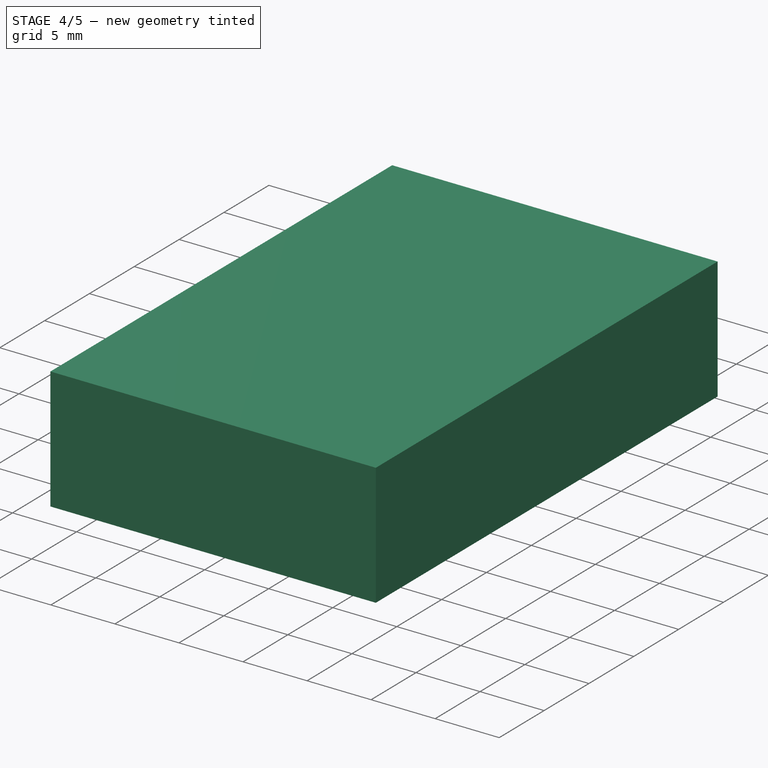
[diagram: stage 4 of 5 — iso view after this stage's code; geometry added in this stage tinted green]
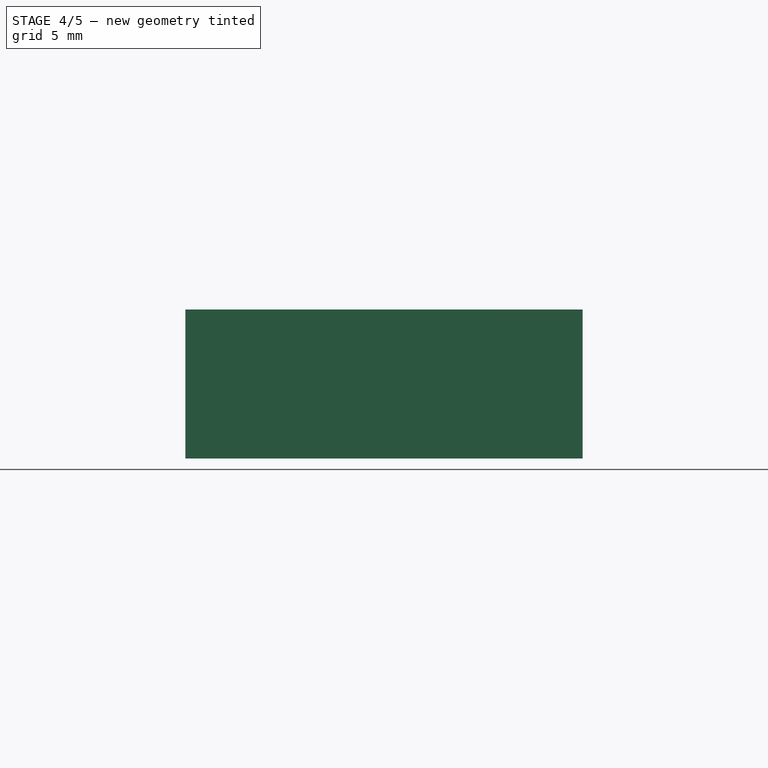
[diagram: stage 4 of 5 — front view after this stage's code; geometry added in this stage tinted green]
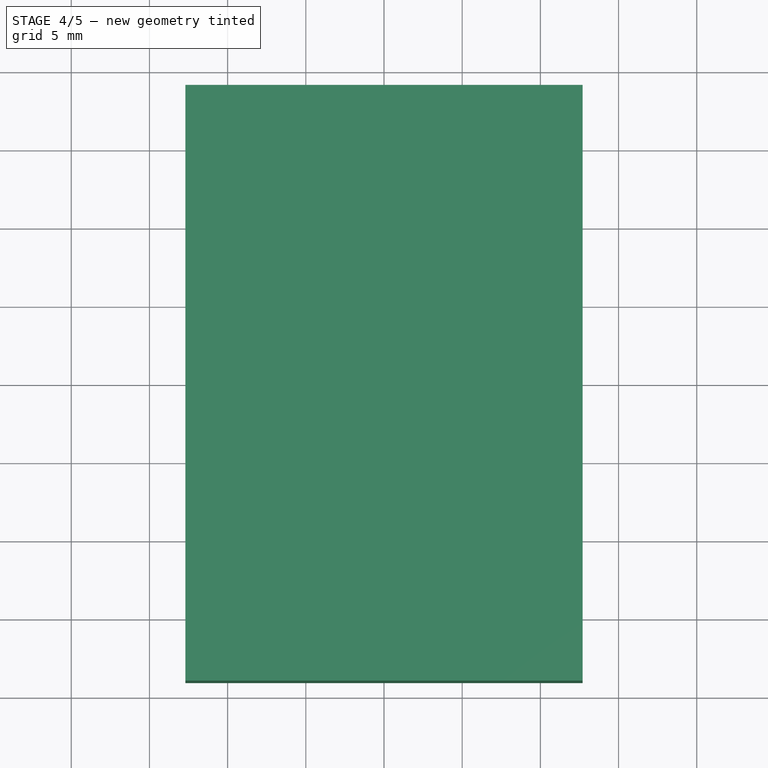
[diagram: stage 4 of 5 — top view after this stage's code; geometry added in this stage tinted green]
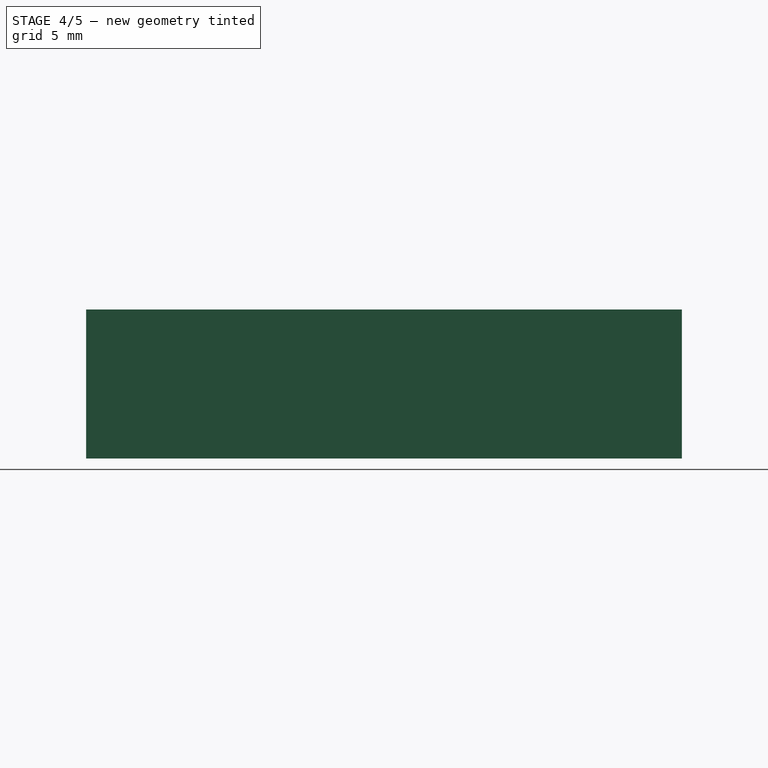
[diagram: stage 4 of 5 — right view after this stage's code; geometry added in this stage tinted green]
FEATURE [PartDesign::Body] Body001  label="led001"
  Group = -> [Sketch001,Pad]
  Origin = -> Origin001
  Placement = pos=(0,0,3.5052) rot=(0,0,1;0rad)
  Tip = -> Pad
FEATURE [Sketcher::SketchObject] Sketch003
  MapMode = 5
  Support = -> [XY_Plane003]
  sketch-geometry (8):
    g0: LineSegment StartX=-4.0005 StartY=0 StartZ=0 EndX=-2.413 EndY=1.5875 EndZ=0
    g1: LineSegment StartX=-2.413 StartY=1.5875 StartZ=0 EndX=2.413 EndY=1.5875 EndZ=0
    g2: LineSegment StartX=2.413 StartY=1.5875 StartZ=0 EndX=4.0005 EndY=0 EndZ=0
    g3: LineSegment StartX=4.0005 StartY=0 StartZ=0 EndX=2.413 EndY=-1.5875 EndZ=0
    g4: LineSegment StartX=2.413 StartY=-1.5875 StartZ=0 EndX=-2.413 EndY=-1.5875 EndZ=0
    g5: LineSegment StartX=-2.413 StartY=-1.5875 StartZ=0 EndX=-4.0005 EndY=0 EndZ=0
    g6: LineSegment [constr] StartX=-2.413 StartY=1.5875 StartZ=0 EndX=-2.413 EndY=-1.5875 EndZ=0
    g7: LineSegment [constr] StartX=2.413 StartY=1.5875 StartZ=0 EndX=2.413 EndY=-1.5875 EndZ=0
  constraints (21):
    c: PointOnObject(g0,g-1)
    c: Coincident(g0,g1)
    c: Coincident(g1,g2)
    c: PointOnObject(g2,g-1)
    c: Coincident(g2,g3)
    c: Coincident(g3,g4)
    c: Horizontal(g4)
    c: Coincident(g4,g5)
    c: Coincident(g5,g0)
    c: Coincident(g0,g6)
    c: Coincident(g6,g4)
    c: Vertical(g6)
    c: Coincident(g1,g7)
    c: Coincident(g7,g3)
    c: Angle(g7,g2) = 0.785398
    c: Equal(g3,g2)
    c: Equal(g0,g5)
    c: Angle(g0,g6) = 0.785398
    c: DistanceY(g6,g6) = 3.175
    c: Symmetric(g1,g0,g-2)
    c: DistanceX(g1,g1) = 4.826
FEATURE [PartDesign::Pad] Pad002
  Length = 7.62
  Length2 = 100.076
  Profile = -> Sketch003
  Type = 0
FEATURE [PartDesign::Body] Body003
  Group = -> [Sketch003,Pad002]
  Origin = -> Origin003
  Placement = pos=(-4.826,0,0) rot=(0,0,1;0rad)
  Tip = -> Pad002
FEATURE [Sketcher::SketchObject] Sketch004
  MapMode = 5
  Support = -> [XY_Plane004]
  sketch-geometry (8):
    g0: LineSegment StartX=-4.0005 StartY=0 StartZ=0 EndX=-2.413 EndY=1.5875 EndZ=0
    g1: LineSegment StartX=-2.413 StartY=1.5875 StartZ=0 EndX=2.413 EndY=1.5875 EndZ=0
    g2: LineSegment StartX=2.413 StartY=1.5875 StartZ=0 EndX=4.0005 EndY=0 EndZ=0
    g3: LineSegment StartX=4.0005 StartY=0 StartZ=0 EndX=2.413 EndY=-1.5875 EndZ=0
    g4: LineSegment StartX=2.413 StartY=-1.5875 StartZ=0 EndX=-2.413 EndY=-1.5875 EndZ=0
    g5: LineSegment StartX=-2.413 StartY=-1.5875 StartZ=0 EndX=-4.0005 EndY=0 EndZ=0
    g6: LineSegment [constr] StartX=-2.413 StartY=1.5875 StartZ=0 EndX=-2.413 EndY=-1.5875 EndZ=0
    g7: LineSegment [constr] StartX=2.413 StartY=1.5875 StartZ=0 EndX=2.413 EndY=-1.5875 EndZ=0
  constraints (21):
    c: PointOnObject(g0,g-1)
    c: Coincident(g0,g1)
    c: Coincident(g1,g2)
    c: PointOnObject(g2,g-1)
    c: Coincident(g2,g3)
    c: Coincident(g3,g4)
    c: Horizontal(g4)
    c: Coincident(g4,g5)
    c: Coincident(g5,g0)
    c: Coincident(g0,g6)
    c: Coincident(g6,g4)
    c: Vertical(g6)
    c: Coincident(g1,g7)
    c: Coincident(g7,g3)
    c: Angle(g7,g2) = 0.785398
    c: Equal(g3,g2)
    c: Equal(g0,g5)
    c: Angle(g0,g6) = 0.785398
    c: DistanceY(g6,g6) = 3.175
    c: Symmetric(g1,g0,g-2)
    c: DistanceX(g1,g1) = 4.826
FEATURE [PartDesign::Pad] Pad003
  Length = 7.62
  Length2 = 100.076
  Profile = -> Sketch004
  Type = 0
FEATURE [PartDesign::Body] Body029
  Group = -> [Sketch029,Pad028]
  Origin = -> Origin029
  Placement = pos=(9.652,0,0) rot=(0,0,1;0rad)
  Tip = -> Pad028
FEATURE [Sketcher::SketchObject] Sketch030
  MapMode = 5
  Support = -> [XY_Plane030]
  sketch-geometry (8):
    g0: LineSegment StartX=0 StartY=0.4445 StartZ=0 EndX=-1.8415 EndY=2.286 EndZ=0
    g1: LineSegment StartX=-1.8415 StartY=2.286 StartZ=0 EndX=-1.8415 EndY=13.716 EndZ=0
    g2: LineSegment StartX=-1.8415 StartY=13.716 StartZ=0 EndX=0 EndY=15.5575 EndZ=0
    g3: LineSegment StartX=0 StartY=15.5575 StartZ=0 EndX=1.8415 EndY=13.716 EndZ=0
    g4: LineSegment StartX=1.8415 StartY=13.716 StartZ=0 EndX=1.8415 EndY=2.286 EndZ=0
    g5: LineSegment StartX=1.8415 StartY=2.286 StartZ=0 EndX=0 EndY=0.4445 EndZ=0
    g6: LineSegment [constr] StartX=1.8415 StartY=2.286 StartZ=0 EndX=-1.8415 EndY=2.286 EndZ=0
    g7: LineSegment [constr] StartX=1.8415 StartY=13.716 StartZ=0 EndX=-1.8415 EndY=13.716 EndZ=0
  constraints (22):
    c: PointOnObject(g0,g-2)
    c: Coincident(g0,g1)
    c: Vertical(g1)
    c: Coincident(g1,g2)
    c: PointOnObject(g2,g-2)
    c: Coincident(g2,g3)
    c: Coincident(g3,g4)
    c: Vertical(g4)
    c: Coincident(g4,g5)
    c: Coincident(g5,g0)
    c: Coincident(g4,g6)
    c: Coincident(g6,g0)
    c: Horizontal(g6)
    c: Coincident(g3,g7)
    c: Coincident(g7,g1)
    c: Angle(g7,g2) = 0.785398
    c: Equal(g2,g3)
    c: DistanceX(g7,g7) = 3.683
    c: Angle(g0,g6) = 0.785398
    c: Equal(g0,g5)
    c: DistanceY(g1,g1) = 11.43
    c: DistanceY(g-1,g0) = 0.4445
FEATURE [PartDesign::Pad] Pad029
  Length = 7.62
  Length2 = 100.076
  Profile = -> Sketch030
  Type = 0
FEATURE [PartDesign::Body] Body030
  Group = -> [Sketch030,Pad029]
  Origin = -> Origin030
  Placement = pos=(-9.652,-16.002,0) rot=(0,0,1;0rad)
  Tip = -> Pad029
FEATURE [Sketcher::SketchObject] Sketch031
  MapMode = 5
  Support = -> [XY_Plane031]
  sketch-geometry (8):
    g0: LineSegment StartX=0 StartY=0.4445 StartZ=0 EndX=-1.8415 EndY=2.286 EndZ=0
    g1: LineSegment StartX=-1.8415 StartY=2.286 StartZ=0 EndX=-1.8415 EndY=13.716 EndZ=0
    g2: LineSegment StartX=-1.8415 StartY=13.716 StartZ=0 EndX=0 EndY=15.5575 EndZ=0
    g3: LineSegment StartX=0 StartY=15.5575 StartZ=0 EndX=1.8415 EndY=13.716 EndZ=0
    g4: LineSegment StartX=1.8415 StartY=13.716 StartZ=0 EndX=1.8415 EndY=2.286 EndZ=0
    g5: LineSegment StartX=1.8415 StartY=2.286 StartZ=0 EndX=0 EndY=0.4445 EndZ=0
    g6: LineSegment [constr] StartX=1.8415 StartY=2.286 StartZ=0 EndX=-1.8415 EndY=2.286 EndZ=0
    g7: LineSegment [constr] StartX=1.8415 StartY=13.716 StartZ=0 EndX=-1.8415 EndY=13.716 EndZ=0
  constraints (22):
    c: PointOnObject(g0,g-2)
    c: Coincident(g0,g1)
    c: Vertical(g1)
    c: Coincident(g1,g2)
    c: PointOnObject(g2,g-2)
    c: Coincident(g2,g3)
    c: Coincident(g3,g4)
    c: Vertical(g4)
    c: Coincident(g4,g5)
    c: Coincident(g5,g0)
    c: Coincident(g4,g6)
    c: Coincident(g6,g0)
    c: Horizontal(g6)
    c: Coincident(g3,g7)
    c: Coincident(g7,g1)
    c: Angle(g7,g2) = 0.785398
    c: Equal(g2,g3)
    c: DistanceX(g7,g7) = 3.683
    c: Angle(g0,g6) = 0.785398
    c: Equal(g0,g5)
    c: DistanceY(g1,g1) = 11.43
    c: DistanceY(g-1,g0) = 0.4445
FEATURE [PartDesign::Pad] Pad030
  Length = 7.62
  Length2 = 100.076
  Profile = -> Sketch031
  Type = 0
FEATURE [PartDesign::Body] Body031
  Group = -> [Sketch031,Pad030]
  Origin = -> Origin031
  Placement = pos=(9.652,-16.002,0) rot=(0,0,1;0rad)
  Tip = -> Pad030
FEATURE [Sketcher::SketchObject] Sketch032
  MapMode = 5
  Support = -> [XY_Plane032]
  sketch-geometry (9):
    g0: LineSegment StartX=-7.366 StartY=13.7066 StartZ=0 EndX=-7.366 EndY=8.9839 EndZ=0
    g1: LineSegment StartX=-7.366 StartY=8.9839 StartZ=0 EndX=-4.064 EndY=2.286 EndZ=0
    g2: LineSegment StartX=-4.064 StartY=2.286 StartZ=0 EndX=-2.286 EndY=2.286 EndZ=0
    g3: LineSegment StartX=-2.286 StartY=2.286 StartZ=0 EndX=-2.286 EndY=7.00869 EndZ=0
    g4: LineSegment StartX=-2.286 StartY=7.00869 StartZ=0 EndX=-5.588 EndY=13.7066 EndZ=0
    g5: LineSegment StartX=-5.588 StartY=13.7066 StartZ=0 EndX=-7.366 EndY=13.7066 EndZ=0
    g6: LineSegment [constr] StartX=-5.588 StartY=13.7066 StartZ=0 EndX=-7.366 EndY=8.9839 EndZ=0
    g7: LineSegment [constr] StartX=-2.286 StartY=7.00869 StartZ=0 EndX=-4.064 EndY=2.286 EndZ=0
    g8: LineSegment [constr] StartX=-6.71251 StartY=7.65834 StartZ=0 EndX=-3.40913 EndY=9.28688 EndZ=0
  constraints (26):
    c: Vertical(g0)
    c: Coincident(g0,g1)
    c: Coincident(g1,g2)
    c: Coincident(g2,g3)
    c: Vertical(g3)
    c: Coincident(g3,g4)
    c: Coincident(g4,g5)
    c: Coincident(g0,g5)
    c: Coincident(g6,g4)
    c: Coincident(g6,g0)
    c: Coincident(g7,g3)
    c: Coincident(g7,g1)
    c: Angle(g0,g5) = 1.5708
    c: Angle(g3,g2) = 1.5708
    c: PointOnObject(g8,g1)
    c: PointOnObject(g8,g4)
    c: Angle(g8,g4) = 1.5708
    c: Distance(g8) = 3.683
    c: Angle(g1,g8) = 1.5708
    c: DistanceX(g2,g-1) = 2.286
    c: DistanceY(g-1,g2) = 2.286
    c: DistanceX(g5,g5) = 1.778
    c: Equal(g2,g5)
    c: Distance(g8,g3) = 2.54
    c: DistanceX(g0,g-1) = 7.366
    c: Distance(g4) = 7.4676
FEATURE [PartDesign::Pad] Pad031
  Length = 7.62
  Length2 = 99.9998
  Profile = -> Sketch032
  Type = 0
FEATURE [PartDesign::Body] Body032
  Group = -> [Sketch032,Pad031]
  Origin = -> Origin032
  Tip = -> Pad031
FEATURE [Sketcher::SketchObject] Sketch033
  MapMode = 5
  Support = -> [XY_Plane033]
  sketch-geometry (9):
    g0: LineSegment StartX=-7.366 StartY=13.7066 StartZ=0 EndX=-7.366 EndY=8.9839 EndZ=0
    g1: LineSegment StartX=-7.366 StartY=8.9839 StartZ=0 EndX=-4.064 EndY=2.286 EndZ=0
    g2: LineSegment StartX=-4.064 StartY=2.286 StartZ=0 EndX=-2.286 EndY=2.286 EndZ=0
    g3: LineSegment StartX=-2.286 StartY=2.286 StartZ=0 EndX=-2.286 EndY=7.00869 EndZ=0
    g4: LineSegment StartX=-2.286 StartY=7.00869 StartZ=0 EndX=-5.588 EndY=13.7066 EndZ=0
    g5: LineSegment StartX=-5.588 StartY=13.7066 StartZ=0 EndX=-7.366 EndY=13.7066 EndZ=0
    g6: LineSegment [constr] StartX=-5.588 StartY=13.7066 StartZ=0 EndX=-7.366 EndY=8.9839 EndZ=0
    g7: LineSegment [constr] StartX=-2.286 StartY=7.00869 StartZ=0 EndX=-4.064 EndY=2.286 EndZ=0
    g8: LineSegment [constr] StartX=-6.71251 StartY=7.65834 StartZ=0 EndX=-3.40913 EndY=9.28688 EndZ=0
  constraints (26):
    c: Vertical(g0)
    c: Coincident(g0,g1)
    c: Coincident(g1,g2)
    c: Coincident(g2,g3)
    c: Vertical(g3)
    c: Coincident(g3,g4)
    c: Coincident(g4,g5)
    c: Coincident(g0,g5)
    c: Coincident(g6,g4)
    c: Coincident(g6,g0)
    c: Coincident(g7,g3)
    c: Coincident(g7,g1)
    c: Angle(g0,g5) = 1.5708
    c: Angle(g3,g2) = 1.5708
    c: PointOnObject(g8,g1)
    c: PointOnObject(g8,g4)
    c: Angle(g8,g4) = 1.5708
    c: Distance(g8) = 3.683
    c: Angle(g1,g8) = 1.5708
    c: DistanceX(g2,g-1) = 2.286
    c: DistanceY(g-1,g2) = 2.286
    c: DistanceX(g5,g5) = 1.778
    c: Equal(g2,g5)
    c: Distance(g4) = 7.4676
    c: Distance(g8,g3) = 2.54
    c: DistanceX(g0,g-1) = 7.366
FEATURE [PartDesign::Pad] Pad032
  Length = 7.62
  Length2 = 99.9998
  Profile = -> Sketch033
  Type = 0
FEATURE [PartDesign::Body] Body033
  Group = -> [Sketch033,Pad032]
  Origin = -> Origin033
  Placement = pos=(9.652,-16.002,0) rot=(0,0,1;0rad)
  Tip = -> Pad032
FEATURE [Sketcher::SketchObject] Sketch034
  AttachmentOffset = pos=(0,0,0) rot=(0,1,0;3.14159rad)
  MapMode = 5
  Placement = pos=(0,0,0) rot=(0,1,0;3.14159rad)
  Support = -> [XY_Plane034]
  sketch-geometry (9):
    g0: LineSegment StartX=-7.366 StartY=13.7066 StartZ=0 EndX=-7.366 EndY=8.9839 EndZ=0
    g1: LineSegment StartX=-7.366 StartY=8.9839 StartZ=0 EndX=-4.064 EndY=2.286 EndZ=0
    g2: LineSegment StartX=-4.064 StartY=2.286 StartZ=0 EndX=-2.286 EndY=2.286 EndZ=0
    g3: LineSegment StartX=-2.286 StartY=2.286 StartZ=0 EndX=-2.286 EndY=7.00869 EndZ=0
    g4: LineSegment StartX=-2.286 StartY=7.00869 StartZ=0 EndX=-5.588 EndY=13.7066 EndZ=0
    g5: LineSegment StartX=-5.588 StartY=13.7066 StartZ=0 EndX=-7.366 EndY=13.7066 EndZ=0
    g6: LineSegment [constr] StartX=-5.588 StartY=13.7066 StartZ=0 EndX=-7.366 EndY=8.9839 EndZ=0
    g7: LineSegment [constr] StartX=-2.286 StartY=7.00869 StartZ=0 EndX=-4.064 EndY=2.286 EndZ=0
    g8: LineSegment [constr] StartX=-6.8282 StartY=7.893 StartZ=0 EndX=-3.52481 EndY=9.52154 EndZ=0
  constraints (26):
    c: Vertical(g0)
    c: Coincident(g0,g1)
    c: Coincident(g1,g2)
    c: Coincident(g2,g3)
    c: Vertical(g3)
    c: Coincident(g3,g4)
    c: Coincident(g4,g5)
    c: Coincident(g0,g5)
    c: Coincident(g6,g4)
    c: Coincident(g6,g0)
    c: Coincident(g7,g3)
    c: Coincident(g7,g1)
    c: Angle(g0,g5) = 1.5708
    c: Angle(g3,g2) = 1.5708
    c: PointOnObject(g8,g1)
    c: PointOnObject(g8,g4)
    c: Angle(g8,g4) = 1.5708
    c: Distance(g8) = 3.683
    c: Angle(g1,g8) = 1.5708
    c: DistanceX(g2,g-1) = 2.286
    c: DistanceY(g-1,g2) = 2.286
    c: DistanceX(g5,g5) = 1.778
    c: Equal(g2,g5)
    c: Distance(g8,g3) = 2.80162
    c: Distance(g4) = 7.4676
    c: DistanceX(g0,g-1) = 7.366
FEATURE [PartDesign::Pad] Pad033
  Length = 7.62
  Length2 = 99.9998
  Profile = -> Sketch034
  Reversed = true
  Type = 0
FEATURE [PartDesign::Body] Body034
  Group = -> [Sketch034,Pad033]
  Origin = -> Origin034
  Tip = -> Pad033
FEATURE [Sketcher::SketchObject] Sketch035
  AttachmentOffset = pos=(0,0,0) rot=(0,1,0;3.14159rad)
  MapMode = 5
  Placement = pos=(0,0,0) rot=(0,1,0;3.14159rad)
  Support = -> [XY_Plane035]
  sketch-geometry (9):
    g0: LineSegment StartX=-7.366 StartY=13.7066 StartZ=0 EndX=-7.366 EndY=8.9839 EndZ=0
    g1: LineSegment StartX=-7.366 StartY=8.9839 StartZ=0 EndX=-4.064 EndY=2.286 EndZ=0
    g2: LineSegment StartX=-4.064 StartY=2.286 StartZ=0 EndX=-2.286 EndY=2.286 EndZ=0
    g3: LineSegment StartX=-2.286 StartY=2.286 StartZ=0 EndX=-2.286 EndY=7.00869 EndZ=0
    g4: LineSegment StartX=-2.286 StartY=7.00869 StartZ=0 EndX=-5.588 EndY=13.7066 EndZ=0
    g5: LineSegment StartX=-5.588 StartY=13.7066 StartZ=0 EndX=-7.366 EndY=13.7066 EndZ=0
    g6: LineSegment [constr] StartX=-5.588 StartY=13.7066 StartZ=0 EndX=-7.366 EndY=8.9839 EndZ=0
    g7: LineSegment [constr] StartX=-2.286 StartY=7.00869 StartZ=0 EndX=-4.064 EndY=2.286 EndZ=0
    g8: LineSegment [constr] StartX=-6.71251 StartY=7.65834 StartZ=0 EndX=-3.40913 EndY=9.28688 EndZ=0
  constraints (29):
    c: Vertical(g0)
    c: Coincident(g0,g1)
    c: Coincident(g1,g2)
    c: Coincident(g2,g3)
    c: Vertical(g3)
    c: Coincident(g3,g4)
    c: Coincident(g4,g5)
    c: Coincident(g0,g5)
    c: Coincident(g6,g4)
    c: Coincident(g6,g0)
    c: Coincident(g7,g3)
    c: Coincident(g7,g1)
    c: Angle(g0,g5) = 1.5708
    c: Angle(g3,g2) = 1.5708
    c: PointOnObject(g8,g1)
    c: PointOnObject(g8,g4)
    c: Angle(g8,g4) = 1.5708
    c: Distance(g8) = 3.683
    c: Angle(g1,g8) = 1.5708
    c: DistanceX(g2,g-1) = 2.286
    c: DistanceY(g-1,g2) = 2.286
    c: Equal(g2,g5)
    c: Distance(g8,g3) = 2.54
    c: DistanceX(g0,g-1) = 7.366
    c: DistanceX(g5,g5) = 1.778
    c: Distance(g4) = 7.4676
    c: DistanceY(g0,g0) = 4.72269
    c: DistanceY(g2,g3) = 4.72269
    c: DistanceX(g2,g2) = 1.778
FEATURE [PartDesign::Pad] Pad034
  Length = 7.62
  Length2 = 99.9998
  Profile = -> Sketch035
  Reversed = true
  Type = 0
FEATURE [PartDesign::Pad] Pad035
  Length = 9.525
  Length2 = 99.9998
  Profile = -> Sketch
  Type = 0
FEATURE [Sketcher::SketchObject] Sketch076
  MapMode = 5
  Support = -> [XY_Plane074]
  sketch-geometry (4):
    g0: LineSegment StartX=-11.557 StartY=17.907 StartZ=0 EndX=11.557 EndY=17.907 EndZ=0
    g1: LineSegment StartX=11.557 StartY=17.907 StartZ=0 EndX=11.557 EndY=-17.907 EndZ=0
    g2: LineSegment StartX=11.557 StartY=-17.907 StartZ=0 EndX=-11.557 EndY=-17.907 EndZ=0
    g3: LineSegment StartX=-11.557 StartY=-17.907 StartZ=0 EndX=-11.557 EndY=17.907 EndZ=0
  constraints (10):
    c: Coincident(g0,g1)
    c: Coincident(g1,g2)
    c: Coincident(g2,g3)
    c: Coincident(g3,g0)
    c: Horizontal(g2)
    c: Vertical(g1)
    c: DistanceX(g0,g0) = 23.114
    c: DistanceY(g3,g3) = 35.814
    c: Symmetric(g0,g2,g-1)
    c: Symmetric(g0,g0,g-2)
FEATURE [PartDesign::Pad] Pad075
  Length = 2.032
  Length2 = 100.076
  Profile = -> Sketch076
  Type = 0
FEATURE [Sketcher::SketchObject] Sketch077
  MapMode = 5
  Support = -> [XY_Plane075]
  sketch-geometry (4):
    g0: LineSegment StartX=-1.7653 StartY=1.143 StartZ=0 EndX=1.7653 EndY=1.143 EndZ=0
    g1: LineSegment StartX=1.7653 StartY=1.143 StartZ=0 EndX=1.7653 EndY=-1.143 EndZ=0
    g2: LineSegment StartX=1.7653 StartY=-1.143 StartZ=0 EndX=-1.7653 EndY=-1.143 EndZ=0
    g3: LineSegment StartX=-1.7653 StartY=-1.143 StartZ=0 EndX=-1.7653 EndY=1.143 EndZ=0
  constraints (10):
    c: Coincident(g0,g1)
    c: Coincident(g1,g2)
    c: Coincident(g2,g3)
    c: Coincident(g3,g0)
    c: Horizontal(g2)
    c: Vertical(g3)
    c: Symmetric(g0,g1,g-1)
    c: Symmetric(g0,g0,g-2)
    c: DistanceX(g0,g0) = 3.5306
    c: DistanceY(g3,g3) = 2.286
FEATURE [PartDesign::Pad] Pad076
  Length = 4.1148
  Length2 = 100.076
  Profile = -> Sketch077
  Type = 0
FEATURE [PartDesign::Body] Body075  label="led002"
  Group = -> [Sketch077,Pad076]
  Origin = -> Origin074
  Placement = pos=(-4.826,0,3.5052) rot=(0,0,1;0rad)
  Tip = -> Pad076
FEATURE [Part::Cut] Cut002
  Base = -> Body003
  Tool = -> Body075
FEATURE [PartDesign::Body] Body076  label="led003"
  Group = -> [Sketch078,Pad077]
  Origin = -> Origin075
  Placement = pos=(4.826,0,3.5052) rot=(0,0,1;0rad)
  Tip = -> Pad077
FEATURE [Part::Cut] Cut003
  Base = -> Body004
  Tool = -> Body076
FEATURE [Part::MultiFuse] Fusion  label="Digit"
  Shapes = -> [Cut002,Cut007,Cut006,Cut008,Cut015,Cut005,Cut013,Cut009,Cut012,Cut004,Cut010,Cut014,Cut003,Cut011,Cut016,Cut017]
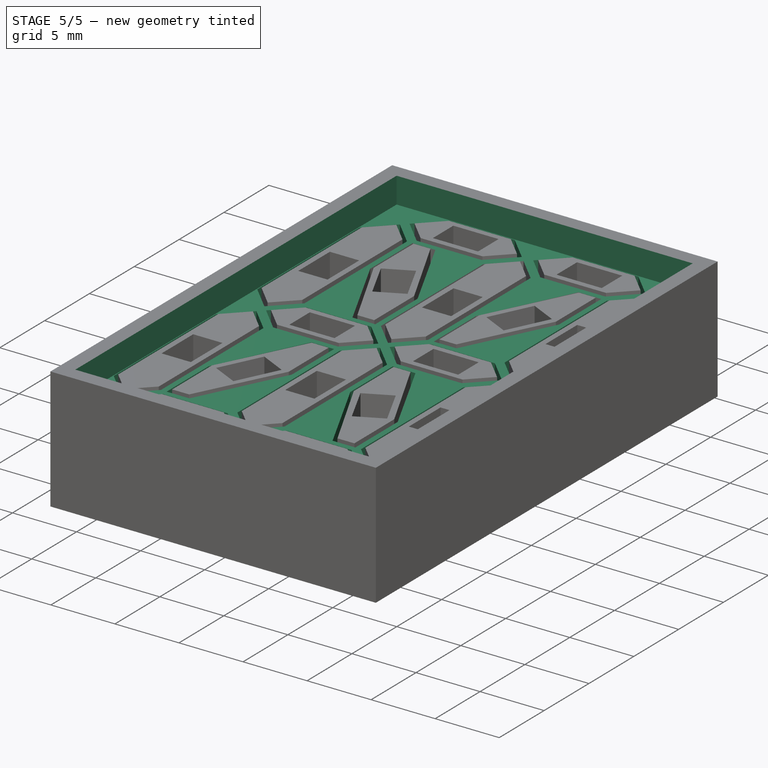
[diagram: stage 5 of 5 — iso view after this stage's code; geometry added in this stage tinted green]
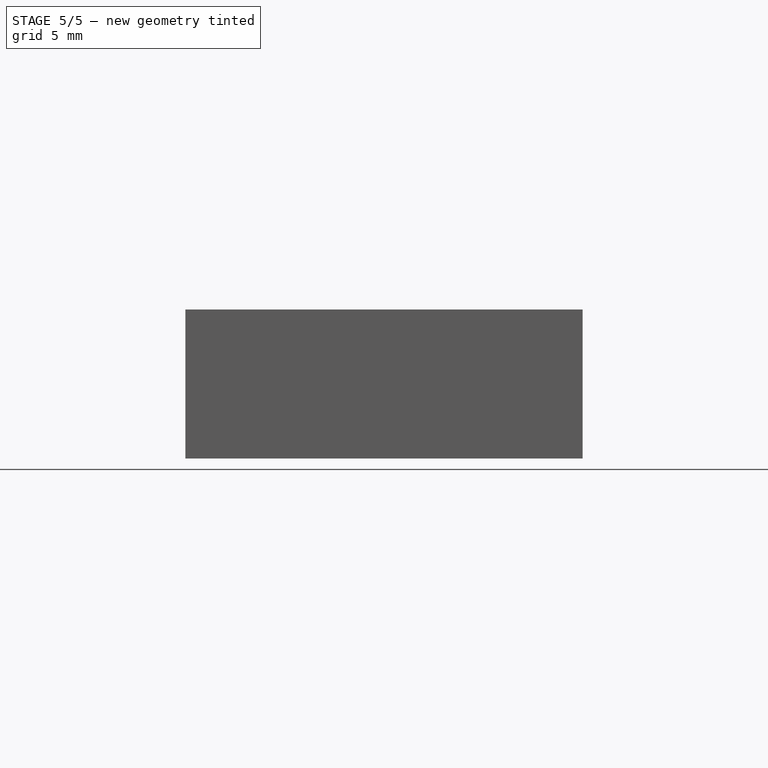
[diagram: stage 5 of 5 — front view after this stage's code; geometry added in this stage tinted green]
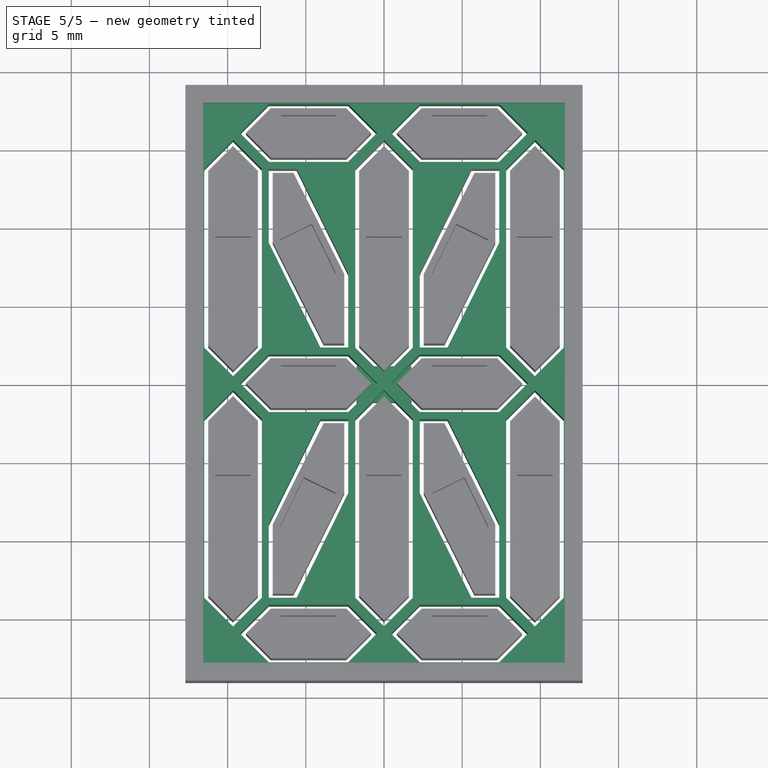
[diagram: stage 5 of 5 — top view after this stage's code; geometry added in this stage tinted green]
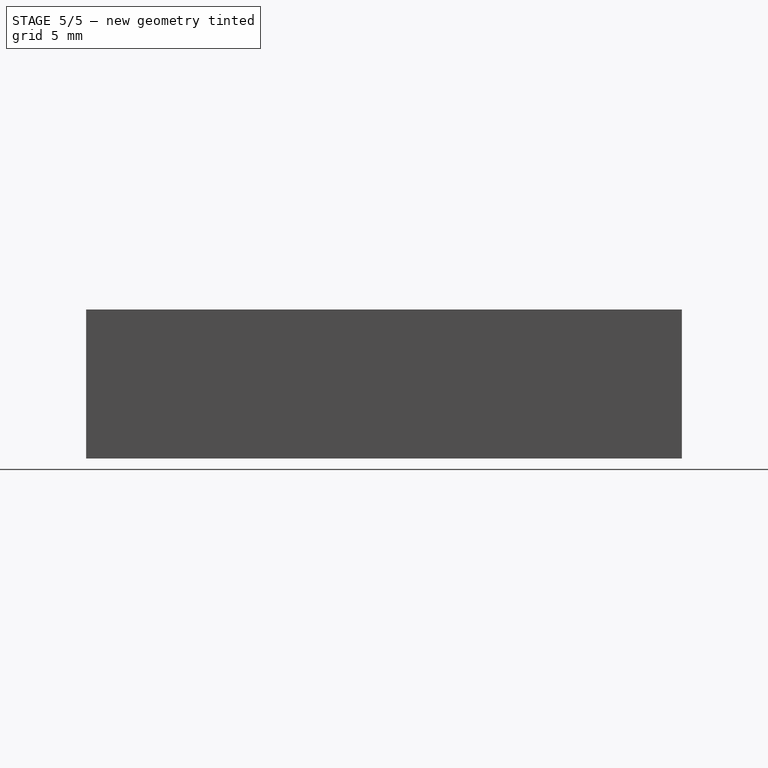
[diagram: stage 5 of 5 — right view after this stage's code; geometry added in this stage tinted green]
FEATURE [Sketcher::SketchObject] Sketch
  MapMode = 5
  Support = -> [XY_Plane]
  sketch-geometry (4):
    g0: LineSegment StartX=-12.7 StartY=19.05 StartZ=0 EndX=12.7 EndY=19.05 EndZ=0
    g1: LineSegment StartX=12.7 StartY=19.05 StartZ=0 EndX=12.7 EndY=-19.05 EndZ=0
    g2: LineSegment StartX=12.7 StartY=-19.05 StartZ=0 EndX=-12.7 EndY=-19.05 EndZ=0
    g3: LineSegment StartX=-12.7 StartY=-19.05 StartZ=0 EndX=-12.7 EndY=19.05 EndZ=0
  constraints (10):
    c: Coincident(g0,g1)
    c: Coincident(g1,g2)
    c: Coincident(g2,g3)
    c: Coincident(g3,g0)
    c: Horizontal(g2)
    c: Vertical(g1)
    c: DistanceX(g0,g0) = 25.4
    c: DistanceY(g3,g3) = 38.1
    c: Symmetric(g0,g0,g-2)
    c: Symmetric(g0,g2,g-1)
FEATURE [Sketcher::SketchObject] Sketch001
  MapMode = 5
  Support = -> [XY_Plane001]
  sketch-geometry (4):
    g0: LineSegment StartX=-1.7653 StartY=1.143 StartZ=0 EndX=1.7653 EndY=1.143 EndZ=0
    g1: LineSegment StartX=1.7653 StartY=1.143 StartZ=0 EndX=1.7653 EndY=-1.143 EndZ=0
    g2: LineSegment StartX=1.7653 StartY=-1.143 StartZ=0 EndX=-1.7653 EndY=-1.143 EndZ=0
    g3: LineSegment StartX=-1.7653 StartY=-1.143 StartZ=0 EndX=-1.7653 EndY=1.143 EndZ=0
  constraints (10):
    c: Coincident(g0,g1)
    c: Coincident(g1,g2)
    c: Coincident(g2,g3)
    c: Coincident(g3,g0)
    c: Horizontal(g2)
    c: Vertical(g3)
    c: Symmetric(g0,g1,g-1)
    c: Symmetric(g0,g0,g-2)
    c: DistanceX(g0,g0) = 3.5306
    c: DistanceY(g3,g3) = 2.286
FEATURE [PartDesign::Pad] Pad
  Length = 4.1148
  Length2 = 100.076
  Profile = -> Sketch001
  Type = 0
FEATURE [PartDesign::Body] Body019
  Group = -> [Sketch019,Pad018]
  Origin = -> Origin019
  Placement = pos=(-9.652,-16.002,0) rot=(0,0,1;0rad)
  Tip = -> Pad018
FEATURE [Sketcher::SketchObject] Sketch020
  MapMode = 5
  Support = -> [XY_Plane020]
  sketch-geometry (8):
    g0: LineSegment StartX=-4.3815 StartY=0 StartZ=0 EndX=-2.54 EndY=1.8415 EndZ=0
    g1: LineSegment StartX=-2.54 StartY=1.8415 StartZ=0 EndX=2.54 EndY=1.8415 EndZ=0
    g2: LineSegment StartX=2.54 StartY=1.8415 StartZ=0 EndX=4.3815 EndY=0 EndZ=0
    g3: LineSegment StartX=4.3815 StartY=0 StartZ=0 EndX=2.54 EndY=-1.8415 EndZ=0
    g4: LineSegment StartX=2.54 StartY=-1.8415 StartZ=0 EndX=-2.54 EndY=-1.8415 EndZ=0
    g5: LineSegment StartX=-2.54 StartY=-1.8415 StartZ=0 EndX=-4.3815 EndY=0 EndZ=0
    g6: LineSegment [constr] StartX=-2.54 StartY=1.8415 StartZ=0 EndX=-2.54 EndY=-1.8415 EndZ=0
    g7: LineSegment [constr] StartX=2.54 StartY=1.8415 StartZ=0 EndX=2.54 EndY=-1.8415 EndZ=0
  constraints (21):
    c: PointOnObject(g0,g-1)
    c: Coincident(g0,g1)
    c: Coincident(g1,g2)
    c: PointOnObject(g2,g-1)
    c: Coincident(g2,g3)
    c: Coincident(g3,g4)
    c: Horizontal(g4)
    c: Coincident(g4,g5)
    c: Coincident(g5,g0)
    c: Coincident(g0,g6)
    c: Coincident(g6,g4)
    c: Vertical(g6)
    c: Coincident(g1,g7)
    c: Coincident(g7,g3)
    c: Angle(g7,g2) = 0.785398
    c: Equal(g3,g2)
    c: Equal(g0,g5)
    c: Angle(g0,g6) = 0.785398
    c: DistanceY(g6,g6) = 3.683
    c: Symmetric(g1,g0,g-2)
    c: DistanceX(g1,g1) = 5.08
FEATURE [PartDesign::Pad] Pad019
  Length = 7.62
  Length2 = 100.076
  Profile = -> Sketch020
  Type = 0
FEATURE [PartDesign::Body] Body020
  Group = -> [Sketch020,Pad019]
  Origin = -> Origin020
  Placement = pos=(-4.826,0,0) rot=(0,0,1;0rad)
  Tip = -> Pad019
FEATURE [Sketcher::SketchObject] Sketch021
  MapMode = 5
  Support = -> [XY_Plane021]
  sketch-geometry (8):
    g0: LineSegment StartX=-4.3815 StartY=0 StartZ=0 EndX=-2.54 EndY=1.8415 EndZ=0
    g1: LineSegment StartX=-2.54 StartY=1.8415 StartZ=0 EndX=2.54 EndY=1.8415 EndZ=0
    g2: LineSegment StartX=2.54 StartY=1.8415 StartZ=0 EndX=4.3815 EndY=0 EndZ=0
    g3: LineSegment StartX=4.3815 StartY=0 StartZ=0 EndX=2.54 EndY=-1.8415 EndZ=0
    g4: LineSegment StartX=2.54 StartY=-1.8415 StartZ=0 EndX=-2.54 EndY=-1.8415 EndZ=0
    g5: LineSegment StartX=-2.54 StartY=-1.8415 StartZ=0 EndX=-4.3815 EndY=0 EndZ=0
    g6: LineSegment [constr] StartX=-2.54 StartY=1.8415 StartZ=0 EndX=-2.54 EndY=-1.8415 EndZ=0
    g7: LineSegment [constr] StartX=2.54 StartY=1.8415 StartZ=0 EndX=2.54 EndY=-1.8415 EndZ=0
  constraints (21):
    c: PointOnObject(g0,g-1)
    c: Coincident(g0,g1)
    c: Coincident(g1,g2)
    c: PointOnObject(g2,g-1)
    c: Coincident(g2,g3)
    c: Coincident(g3,g4)
    c: Horizontal(g4)
    c: Coincident(g4,g5)
    c: Coincident(g5,g0)
    c: Coincident(g0,g6)
    c: Coincident(g6,g4)
    c: Vertical(g6)
    c: Coincident(g1,g7)
    c: Coincident(g7,g3)
    c: Angle(g7,g2) = 0.785398
    c: Equal(g3,g2)
    c: Equal(g0,g5)
    c: Angle(g0,g6) = 0.785398
    c: DistanceY(g6,g6) = 3.683
    c: Symmetric(g1,g0,g-2)
    c: DistanceX(g1,g1) = 5.08
FEATURE [PartDesign::Pad] Pad020
  Length = 7.62
  Length2 = 100.076
  Profile = -> Sketch021
  Type = 0
FEATURE [PartDesign::Body] Body021
  Group = -> [Sketch021,Pad020]
  Origin = -> Origin021
  Placement = pos=(4.826,0,0) rot=(0,0,1;0rad)
  Tip = -> Pad020
FEATURE [Sketcher::SketchObject] Sketch022
  MapMode = 5
  Support = -> [XY_Plane022]
  sketch-geometry (8):
    g0: LineSegment StartX=0 StartY=0.4445 StartZ=0 EndX=-1.8415 EndY=2.286 EndZ=0
    g1: LineSegment StartX=-1.8415 StartY=2.286 StartZ=0 EndX=-1.8415 EndY=13.716 EndZ=0
    g2: LineSegment StartX=-1.8415 StartY=13.716 StartZ=0 EndX=0 EndY=15.5575 EndZ=0
    g3: LineSegment StartX=0 StartY=15.5575 StartZ=0 EndX=1.8415 EndY=13.716 EndZ=0
    g4: LineSegment StartX=1.8415 StartY=13.716 StartZ=0 EndX=1.8415 EndY=2.286 EndZ=0
    g5: LineSegment StartX=1.8415 StartY=2.286 StartZ=0 EndX=0 EndY=0.4445 EndZ=0
    g6: LineSegment [constr] StartX=1.8415 StartY=2.286 StartZ=0 EndX=-1.8415 EndY=2.286 EndZ=0
    g7: LineSegment [constr] StartX=1.8415 StartY=13.716 StartZ=0 EndX=-1.8415 EndY=13.716 EndZ=0
  constraints (22):
    c: PointOnObject(g0,g-2)
    c: Coincident(g0,g1)
    c: Vertical(g1)
    c: Coincident(g1,g2)
    c: PointOnObject(g2,g-2)
    c: Coincident(g2,g3)
    c: Coincident(g3,g4)
    c: Vertical(g4)
    c: Coincident(g4,g5)
    c: Coincident(g5,g0)
    c: Coincident(g4,g6)
    c: Coincident(g6,g0)
    c: Horizontal(g6)
    c: Coincident(g3,g7)
    c: Coincident(g7,g1)
    c: Angle(g7,g2) = 0.785398
    c: Equal(g2,g3)
    c: DistanceX(g7,g7) = 3.683
    c: Angle(g0,g6) = 0.785398
    c: Equal(g0,g5)
    c: DistanceY(g1,g1) = 11.43
    c: DistanceY(g-1,g0) = 0.4445
FEATURE [PartDesign::Pad] Pad021
  Length = 7.62
  Length2 = 100.076
  Profile = -> Sketch022
  Type = 0
FEATURE [PartDesign::Body] Body022
  Group = -> [Sketch022,Pad021]
  Origin = -> Origin022
  Tip = -> Pad021
FEATURE [Sketcher::SketchObject] Sketch023
  MapMode = 5
  Support = -> [XY_Plane023]
  sketch-geometry (8):
    g0: LineSegment StartX=0 StartY=0.4445 StartZ=0 EndX=-1.8415 EndY=2.286 EndZ=0
    g1: LineSegment StartX=-1.8415 StartY=2.286 StartZ=0 EndX=-1.8415 EndY=13.716 EndZ=0
    g2: LineSegment StartX=-1.8415 StartY=13.716 StartZ=0 EndX=0 EndY=15.5575 EndZ=0
    g3: LineSegment StartX=0 StartY=15.5575 StartZ=0 EndX=1.8415 EndY=13.716 EndZ=0
    g4: LineSegment StartX=1.8415 StartY=13.716 StartZ=0 EndX=1.8415 EndY=2.286 EndZ=0
    g5: LineSegment StartX=1.8415 StartY=2.286 StartZ=0 EndX=0 EndY=0.4445 EndZ=0
    g6: LineSegment [constr] StartX=1.8415 StartY=2.286 StartZ=0 EndX=-1.8415 EndY=2.286 EndZ=0
    g7: LineSegment [constr] StartX=1.8415 StartY=13.716 StartZ=0 EndX=-1.8415 EndY=13.716 EndZ=0
  constraints (22):
    c: PointOnObject(g0,g-2)
    c: Coincident(g0,g1)
    c: Vertical(g1)
    c: Coincident(g1,g2)
    c: PointOnObject(g2,g-2)
    c: Coincident(g2,g3)
    c: Coincident(g3,g4)
    c: Vertical(g4)
    c: Coincident(g4,g5)
    c: Coincident(g5,g0)
    c: Coincident(g4,g6)
    c: Coincident(g6,g0)
    c: Horizontal(g6)
    c: Coincident(g3,g7)
    c: Coincident(g7,g1)
    c: Angle(g7,g2) = 0.785398
    c: Equal(g2,g3)
    c: DistanceX(g7,g7) = 3.683
    c: Angle(g0,g6) = 0.785398
    c: Equal(g0,g5)
    c: DistanceY(g1,g1) = 11.43
    c: DistanceY(g-1,g0) = 0.4445
FEATURE [PartDesign::Pad] Pad022
  Length = 7.62
  Length2 = 100.076
  Profile = -> Sketch023
  Type = 0
FEATURE [PartDesign::Body] Body023
  Group = -> [Sketch023,Pad022]
  Origin = -> Origin023
  Placement = pos=(0,-16.002,0) rot=(0,0,1;0rad)
  Tip = -> Pad022
FEATURE [Sketcher::SketchObject] Sketch024
  MapMode = 5
  Support = -> [XY_Plane024]
  sketch-geometry (8):
    g0: LineSegment StartX=-4.3815 StartY=0 StartZ=0 EndX=-2.54 EndY=1.8415 EndZ=0
    g1: LineSegment StartX=-2.54 StartY=1.8415 StartZ=0 EndX=2.54 EndY=1.8415 EndZ=0
    g2: LineSegment StartX=2.54 StartY=1.8415 StartZ=0 EndX=4.3815 EndY=-2e-16 EndZ=0
    g3: LineSegment StartX=4.3815 StartY=0 StartZ=0 EndX=2.54 EndY=-1.8415 EndZ=0
    g4: LineSegment StartX=2.54 StartY=-1.8415 StartZ=0 EndX=-2.54 EndY=-1.8415 EndZ=0
    g5: LineSegment StartX=-2.54 StartY=-1.8415 StartZ=0 EndX=-4.3815 EndY=0 EndZ=0
    g6: LineSegment [constr] StartX=-2.54 StartY=1.8415 StartZ=0 EndX=-2.54 EndY=-1.8415 EndZ=0
    g7: LineSegment [constr] StartX=2.54 StartY=1.8415 StartZ=0 EndX=2.54 EndY=-1.8415 EndZ=0
  constraints (21):
    c: PointOnObject(g0,g-1)
    c: Coincident(g0,g1)
    c: Coincident(g1,g2)
    c: PointOnObject(g2,g-1)
    c: Coincident(g2,g3)
    c: Coincident(g3,g4)
    c: Horizontal(g4)
    c: Coincident(g4,g5)
    c: Coincident(g5,g0)
    c: Coincident(g0,g6)
    c: Coincident(g6,g4)
    c: Vertical(g6)
    c: Coincident(g1,g7)
    c: Coincident(g7,g3)
    c: Angle(g7,g2) = 0.785398
    c: Equal(g3,g2)
    c: Equal(g0,g5)
    c: Angle(g0,g6) = 0.785398
    c: DistanceY(g6,g6) = 3.683
    c: Symmetric(g1,g0,g-2)
    c: DistanceX(g1,g1) = 5.08
FEATURE [PartDesign::Pad] Pad023
  Length = 7.62
  Length2 = 100.076
  Profile = -> Sketch024
  Type = 0
FEATURE [PartDesign::Body] Body024
  Group = -> [Sketch024,Pad023]
  Origin = -> Origin024
  Placement = pos=(-4.826,16.002,0) rot=(0,0,1;0rad)
  Tip = -> Pad023
FEATURE [Sketcher::SketchObject] Sketch025
  MapMode = 5
  Support = -> [XY_Plane025]
  sketch-geometry (8):
    g0: LineSegment StartX=-4.3815 StartY=0 StartZ=0 EndX=-2.54 EndY=1.8415 EndZ=0
    g1: LineSegment StartX=-2.54 StartY=1.8415 StartZ=0 EndX=2.54 EndY=1.8415 EndZ=0
    g2: LineSegment StartX=2.54 StartY=1.8415 StartZ=0 EndX=4.3815 EndY=-2e-16 EndZ=0
    g3: LineSegment StartX=4.3815 StartY=-2e-16 StartZ=0 EndX=2.54 EndY=-1.8415 EndZ=0
    g4: LineSegment StartX=2.54 StartY=-1.8415 StartZ=0 EndX=-2.54 EndY=-1.8415 EndZ=0
    g5: LineSegment StartX=-2.54 StartY=-1.8415 StartZ=0 EndX=-4.3815 EndY=0 EndZ=0
    g6: LineSegment [constr] StartX=-2.54 StartY=1.8415 StartZ=0 EndX=-2.54 EndY=-1.8415 EndZ=0
    g7: LineSegment [constr] StartX=2.54 StartY=1.8415 StartZ=0 EndX=2.54 EndY=-1.8415 EndZ=0
  constraints (21):
    c: PointOnObject(g0,g-1)
    c: Coincident(g0,g1)
    c: Coincident(g1,g2)
    c: PointOnObject(g2,g-1)
    c: Coincident(g2,g3)
    c: Coincident(g3,g4)
    c: Horizontal(g4)
    c: Coincident(g4,g5)
    c: Coincident(g5,g0)
    c: Coincident(g0,g6)
    c: Coincident(g6,g4)
    c: Vertical(g6)
    c: Coincident(g1,g7)
    c: Coincident(g7,g3)
    c: Angle(g7,g2) = 0.785398
    c: Equal(g3,g2)
    c: Equal(g0,g5)
    c: Angle(g0,g6) = 0.785398
    c: DistanceY(g6,g6) = 3.683
    c: Symmetric(g1,g0,g-2)
    c: DistanceX(g1,g1) = 5.08
FEATURE [PartDesign::Pad] Pad024
  Length = 7.62
  Length2 = 100.076
  Profile = -> Sketch025
  Type = 0
FEATURE [PartDesign::Body] Body025
  Group = -> [Sketch025,Pad024]
  Origin = -> Origin025
  Placement = pos=(4.826,16.002,0) rot=(0,0,1;0rad)
  Tip = -> Pad024
FEATURE [Sketcher::SketchObject] Sketch026
  MapMode = 5
  Support = -> [XY_Plane026]
  sketch-geometry (8):
    g0: LineSegment StartX=-4.3815 StartY=0 StartZ=0 EndX=-2.54 EndY=1.8415 EndZ=0
    g1: LineSegment StartX=-2.54 StartY=1.8415 StartZ=0 EndX=2.54 EndY=1.8415 EndZ=0
    g2: LineSegment StartX=2.54 StartY=1.8415 StartZ=0 EndX=4.3815 EndY=0 EndZ=0
    g3: LineSegment StartX=4.3815 StartY=0 StartZ=0 EndX=2.54 EndY=-1.8415 EndZ=0
    g4: LineSegment StartX=2.54 StartY=-1.8415 StartZ=0 EndX=-2.54 EndY=-1.8415 EndZ=0
    g5: LineSegment StartX=-2.54 StartY=-1.8415 StartZ=0 EndX=-4.3815 EndY=2e-16 EndZ=0
    g6: LineSegment [constr] StartX=-2.54 StartY=1.8415 StartZ=0 EndX=-2.54 EndY=-1.8415 EndZ=0
    g7: LineSegment [constr] StartX=2.54 StartY=1.8415 StartZ=0 EndX=2.54 EndY=-1.8415 EndZ=0
  constraints (21):
    c: PointOnObject(g0,g-1)
    c: Coincident(g0,g1)
    c: Coincident(g1,g2)
    c: PointOnObject(g2,g-1)
    c: Coincident(g2,g3)
    c: Coincident(g3,g4)
    c: Horizontal(g4)
    c: Coincident(g4,g5)
    c: Coincident(g5,g0)
    c: Coincident(g0,g6)
    c: Coincident(g6,g4)
    c: Vertical(g6)
    c: Coincident(g1,g7)
    c: Coincident(g7,g3)
    c: Angle(g7,g2) = 0.785398
    c: Equal(g3,g2)
    c: Equal(g0,g5)
    c: Angle(g0,g6) = 0.785398
    c: DistanceY(g6,g6) = 3.683
    c: Symmetric(g1,g0,g-2)
    c: DistanceX(g1,g1) = 5.08
FEATURE [PartDesign::Pad] Pad025
  Length = 7.62
  Length2 = 100.076
  Profile = -> Sketch026
  Type = 0
FEATURE [PartDesign::Body] Body026
  Group = -> [Sketch026,Pad025]
  Origin = -> Origin026
  Placement = pos=(-4.826,-16.002,0) rot=(0,0,1;0rad)
  Tip = -> Pad025
FEATURE [Sketcher::SketchObject] Sketch027
  MapMode = 5
  Support = -> [XY_Plane027]
  sketch-geometry (8):
    g0: LineSegment StartX=-4.3815 StartY=0 StartZ=0 EndX=-2.54 EndY=1.8415 EndZ=0
    g1: LineSegment StartX=-2.54 StartY=1.8415 StartZ=0 EndX=2.54 EndY=1.8415 EndZ=0
    g2: LineSegment StartX=2.54 StartY=1.8415 StartZ=0 EndX=4.3815 EndY=-2e-16 EndZ=0
    g3: LineSegment StartX=4.3815 StartY=-2e-16 StartZ=0 EndX=2.54 EndY=-1.8415 EndZ=0
    g4: LineSegment StartX=2.54 StartY=-1.8415 StartZ=0 EndX=-2.54 EndY=-1.8415 EndZ=0
    g5: LineSegment StartX=-2.54 StartY=-1.8415 StartZ=0 EndX=-4.3815 EndY=0 EndZ=0
    g6: LineSegment [constr] StartX=-2.54 StartY=1.8415 StartZ=0 EndX=-2.54 EndY=-1.8415 EndZ=0
    g7: LineSegment [constr] StartX=2.54 StartY=1.8415 StartZ=0 EndX=2.54 EndY=-1.8415 EndZ=0
  constraints (21):
    c: PointOnObject(g0,g-1)
    c: Coincident(g0,g1)
    c: Coincident(g1,g2)
    c: PointOnObject(g2,g-1)
    c: Coincident(g2,g3)
    c: Coincident(g3,g4)
    c: Horizontal(g4)
    c: Coincident(g4,g5)
    c: Coincident(g5,g0)
    c: Coincident(g0,g6)
    c: Coincident(g6,g4)
    c: Vertical(g6)
    c: Coincident(g1,g7)
    c: Coincident(g7,g3)
    c: Angle(g7,g2) = 0.785398
    c: Equal(g3,g2)
    c: Equal(g0,g5)
    c: Angle(g0,g6) = 0.785398
    c: DistanceY(g6,g6) = 3.683
    c: Symmetric(g1,g0,g-2)
    c: DistanceX(g1,g1) = 5.08
FEATURE [PartDesign::Pad] Pad026
  Length = 7.62
  Length2 = 100.076
  Profile = -> Sketch027
  Type = 0
FEATURE [PartDesign::Body] Body027
  Group = -> [Sketch027,Pad026]
  Origin = -> Origin027
  Placement = pos=(4.826,-16.002,0) rot=(0,0,1;0rad)
  Tip = -> Pad026
FEATURE [Sketcher::SketchObject] Sketch028
  MapMode = 5
  Support = -> [XY_Plane028]
  sketch-geometry (8):
    g0: LineSegment StartX=0 StartY=0.4445 StartZ=0 EndX=-1.8415 EndY=2.286 EndZ=0
    g1: LineSegment StartX=-1.8415 StartY=2.286 StartZ=0 EndX=-1.8415 EndY=13.716 EndZ=0
    g2: LineSegment StartX=-1.8415 StartY=13.716 StartZ=0 EndX=0 EndY=15.5575 EndZ=0
    g3: LineSegment StartX=0 StartY=15.5575 StartZ=0 EndX=1.8415 EndY=13.716 EndZ=0
    g4: LineSegment StartX=1.8415 StartY=13.716 StartZ=0 EndX=1.8415 EndY=2.286 EndZ=0
    g5: LineSegment StartX=1.8415 StartY=2.286 StartZ=0 EndX=0 EndY=0.4445 EndZ=0
    g6: LineSegment [constr] StartX=1.8415 StartY=2.286 StartZ=0 EndX=-1.8415 EndY=2.286 EndZ=0
    g7: LineSegment [constr] StartX=1.8415 StartY=13.716 StartZ=0 EndX=-1.8415 EndY=13.716 EndZ=0
  constraints (22):
    c: PointOnObject(g0,g-2)
    c: Coincident(g0,g1)
    c: Vertical(g1)
    c: Coincident(g1,g2)
    c: PointOnObject(g2,g-2)
    c: Coincident(g2,g3)
    c: Coincident(g3,g4)
    c: Vertical(g4)
    c: Coincident(g4,g5)
    c: Coincident(g5,g0)
    c: Coincident(g4,g6)
    c: Coincident(g6,g0)
    c: Horizontal(g6)
    c: Coincident(g3,g7)
    c: Coincident(g7,g1)
    c: Angle(g7,g2) = 0.785398
    c: Equal(g2,g3)
    c: DistanceX(g7,g7) = 3.683
    c: Angle(g0,g6) = 0.785398
    c: Equal(g0,g5)
    c: DistanceY(g1,g1) = 11.43
    c: DistanceY(g-1,g0) = 0.4445
FEATURE [PartDesign::Pad] Pad027
  Length = 7.62
  Length2 = 100.076
  Profile = -> Sketch028
  Type = 0
FEATURE [PartDesign::Body] Body028
  Group = -> [Sketch028,Pad027]
  Origin = -> Origin028
  Placement = pos=(-9.652,0,0) rot=(0,0,1;0rad)
  Tip = -> Pad027
FEATURE [Sketcher::SketchObject] Sketch029
  MapMode = 5
  Support = -> [XY_Plane029]
  sketch-geometry (8):
    g0: LineSegment StartX=0 StartY=0.4445 StartZ=0 EndX=-1.8415 EndY=2.286 EndZ=0
    g1: LineSegment StartX=-1.8415 StartY=2.286 StartZ=0 EndX=-1.8415 EndY=13.716 EndZ=0
    g2: LineSegment StartX=-1.8415 StartY=13.716 StartZ=0 EndX=0 EndY=15.5575 EndZ=0
    g3: LineSegment StartX=0 StartY=15.5575 StartZ=0 EndX=1.8415 EndY=13.716 EndZ=0
    g4: LineSegment StartX=1.8415 StartY=13.716 StartZ=0 EndX=1.8415 EndY=2.286 EndZ=0
    g5: LineSegment StartX=1.8415 StartY=2.286 StartZ=0 EndX=0 EndY=0.4445 EndZ=0
    g6: LineSegment [constr] StartX=1.8415 StartY=2.286 StartZ=0 EndX=-1.8415 EndY=2.286 EndZ=0
    g7: LineSegment [constr] StartX=1.8415 StartY=13.716 StartZ=0 EndX=-1.8415 EndY=13.716 EndZ=0
  constraints (22):
    c: PointOnObject(g0,g-2)
    c: Coincident(g0,g1)
    c: Vertical(g1)
    c: Coincident(g1,g2)
    c: PointOnObject(g2,g-2)
    c: Coincident(g2,g3)
    c: Coincident(g3,g4)
    c: Vertical(g4)
    c: Coincident(g4,g5)
    c: Coincident(g5,g0)
    c: Coincident(g4,g6)
    c: Coincident(g6,g0)
    c: Horizontal(g6)
    c: Coincident(g3,g7)
    c: Coincident(g7,g1)
    c: Angle(g7,g2) = 0.785398
    c: Equal(g2,g3)
    c: DistanceX(g7,g7) = 3.683
    c: Angle(g0,g6) = 0.785398
    c: Equal(g0,g5)
    c: DistanceY(g1,g1) = 11.43
    c: DistanceY(g-1,g0) = 0.4445
FEATURE [PartDesign::Pad] Pad028
  Length = 7.62
  Length2 = 100.076
  Profile = -> Sketch029
  Type = 0
FEATURE [PartDesign::Body] Body035
  Group = -> [Sketch035,Pad034]
  Origin = -> Origin035
  Placement = pos=(-9.652,-16.002,0) rot=(0,0,1;0rad)
  Tip = -> Pad034
FEATURE [Part::MultiFuse] Fusion001  label="Digit-holes"
  Shapes = -> [Body035,Body020,Body029,Body021,Body030,Body028,Body032,Body026,Body023,Body033,Body027,Body024,Body031,Body034,Body022,Body025]
FEATURE [PartDesign::Body] Body
  Group = -> [Sketch,Pad035]
  Origin = -> Origin
  Tip = -> Pad035
FEATURE [Part::Cut] Cut
  Base = -> Body
  Tool = -> Fusion001
FEATURE [PartDesign::Body] Body074
  Group = -> [Sketch076,Pad075]
  Origin = -> Origin073
  Placement = pos=(0,0,7.493) rot=(0,0,1;0rad)
  Tip = -> Pad075
FEATURE [Part::Cut] Cut001  label="Frame"
  Base = -> Cut
  Tool = -> Body074
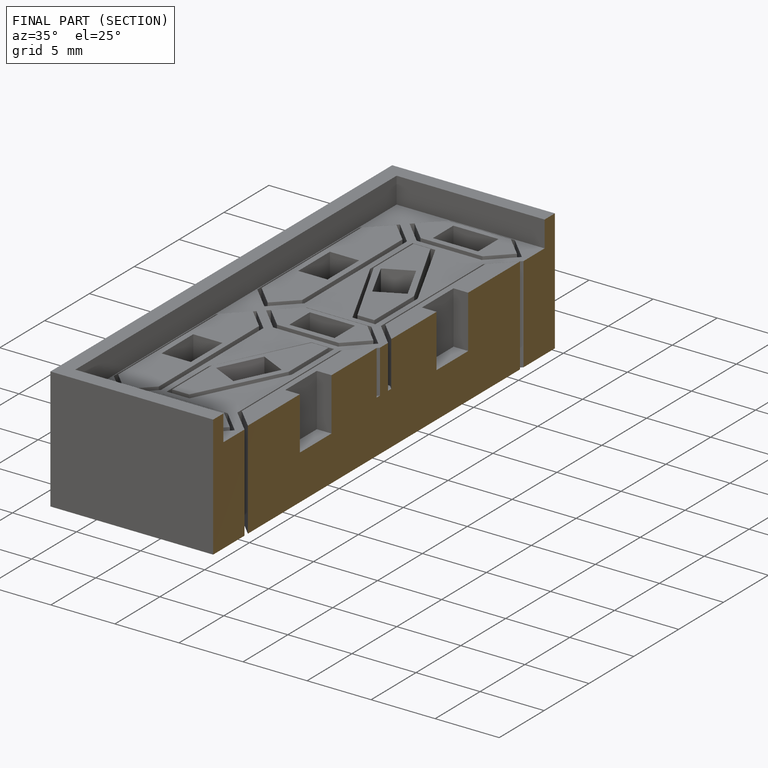
[diagram: finished part — half-section view (interior)]
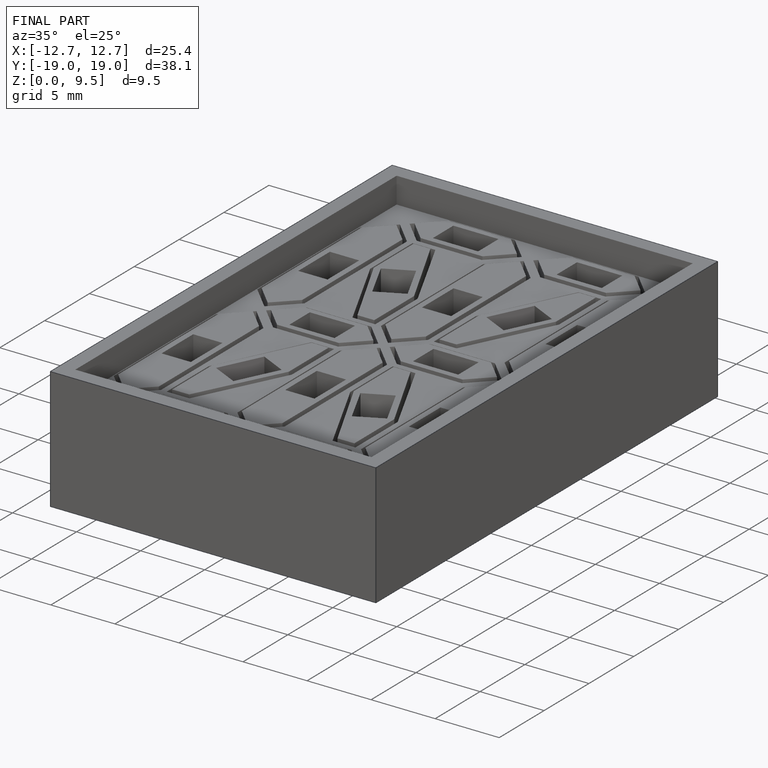
[diagram: finished part — iso view with bounding-box wireframe]
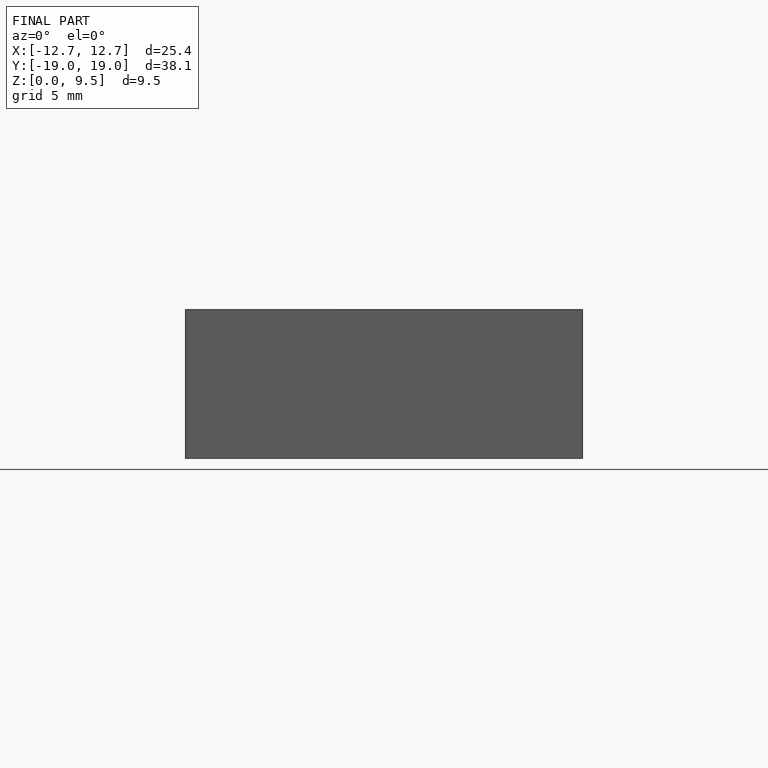
[diagram: finished part — front view with bounding-box wireframe]
